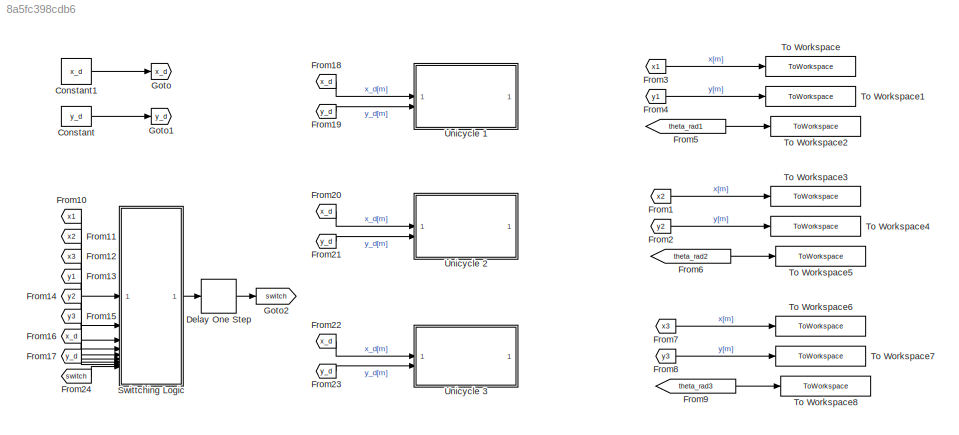
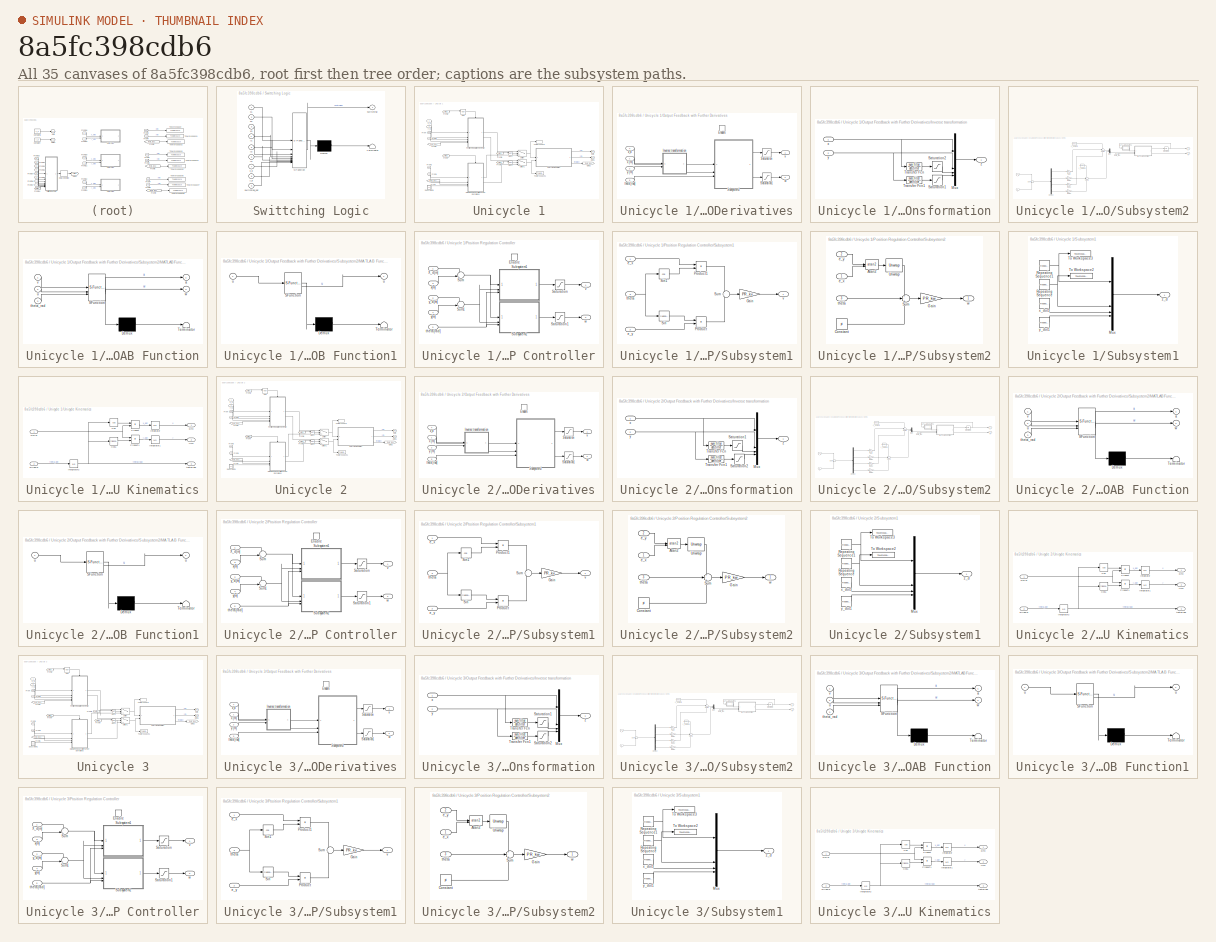
[diagram: thumbnail index - all 35 canvases of the model, root first then tree order]
MODEL slx_8a5fc398cdb6
KIND model
CONFIG AbsTol = auto
CONFIG EnableMultiTasking = off
CONFIG FixedStep = 1e-3
CONFIG MaxStep = 1e-3
CONFIG MinStep = auto
CONFIG RelTol = 1e-3
CONFIG SampleTimeConstraint = Unconstrained
CONFIG SolverName = ode4
CONFIG StartTime = 0.0
CONFIG StopTime = 50
BLOCK [Constant] Constant
  Value = y_d
BLOCK [Constant] Constant1
  Value = x_d
BLOCK [Delay] Delay One Step
  DelayLength = 1
  InputPortMap = u0
BLOCK [From] From1
  GotoTag = x2
  TagVisibility = global
BLOCK [From] From10
  GotoTag = x1
  TagVisibility = global
BLOCK [From] From11
  GotoTag = x2
  TagVisibility = global
BLOCK [From] From12
  GotoTag = x3
  TagVisibility = global
BLOCK [From] From13
  GotoTag = y1
  TagVisibility = global
BLOCK [From] From14
  GotoTag = y2
  TagVisibility = global
BLOCK [From] From15
  GotoTag = y3
  TagVisibility = global
BLOCK [From] From16
  GotoTag = x_d
  TagVisibility = global
BLOCK [From] From17
  GotoTag = y_d
  TagVisibility = global
BLOCK [From] From18
  GotoTag = x_d
  TagVisibility = global
BLOCK [From] From19
  GotoTag = y_d
  TagVisibility = global
BLOCK [From] From2
  GotoTag = y2
  TagVisibility = global
BLOCK [From] From20
  GotoTag = x_d
  TagVisibility = global
BLOCK [From] From21
  GotoTag = y_d
  TagVisibility = global
BLOCK [From] From22
  GotoTag = x_d
  TagVisibility = global
BLOCK [From] From23
  GotoTag = y_d
  TagVisibility = global
BLOCK [From] From24
  GotoTag = switch
  TagVisibility = global
BLOCK [From] From3
  GotoTag = x1
  TagVisibility = global
BLOCK [From] From4
  GotoTag = y1
  TagVisibility = global
BLOCK [From] From5
  GotoTag = theta_rad1
  TagVisibility = global
BLOCK [From] From6
  GotoTag = theta_rad2
  TagVisibility = global
BLOCK [From] From7
  GotoTag = x3
  TagVisibility = global
BLOCK [From] From8
  GotoTag = y3
  TagVisibility = global
BLOCK [From] From9
  GotoTag = theta_rad3
  TagVisibility = global
BLOCK [Goto] Goto
  GotoTag = x_d
  TagVisibility = global
BLOCK [Goto] Goto1
  GotoTag = y_d
  TagVisibility = global
BLOCK [Goto] Goto2
  GotoTag = switch
  TagVisibility = global
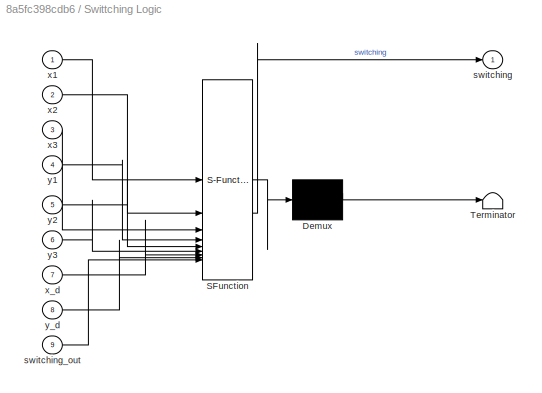
BLOCK [SubSystem] Swittching Logic
  ErrorFcn = Stateflow.Translate.translate
  LibrarySourceBlock = simulink/User-Defined\nFunctions/MATLAB Function
  PermitHierarchicalResolution = ExplicitOnly
  SFBlockType = MATLAB Function
  TreatAsAtomicUnit = on
BLOCK [Demux] Swittching Logic/ Demux 
  Outputs = 1
BLOCK [S-Function] Swittching Logic/ SFunction 
  EnableBusSupport = on
  FunctionName = sf_sfun
  Parameters = tolerance_position
  PortCounts = [9 2]
  SFcnIsStateOwnerBlock = off
  SFunctionDeploymentMode = off
  Tag = Stateflow S-Function 4
BLOCK [Terminator] Swittching Logic/ Terminator 
BLOCK [Outport] Swittching Logic/switching
BLOCK [Inport] Swittching Logic/switching_out
  Port = 9
BLOCK [Inport] Swittching Logic/x1
BLOCK [Inport] Swittching Logic/x2
  Port = 2
BLOCK [Inport] Swittching Logic/x3
  Port = 3
BLOCK [Inport] Swittching Logic/x_d
  Port = 7
BLOCK [Inport] Swittching Logic/y1
  Port = 4
BLOCK [Inport] Swittching Logic/y2
  Port = 5
BLOCK [Inport] Swittching Logic/y3
  Port = 6
BLOCK [Inport] Swittching Logic/y_d
  Port = 8
BLOCK [ToWorkspace] To Workspace
  FixptAsFi = on
  MaxDataPoints = inf
  SampleTime = -1
  SaveFormat = Structure With Time
  VariableName = x1
BLOCK [ToWorkspace] To Workspace1
  FixptAsFi = on
  MaxDataPoints = inf
  SampleTime = -1
  SaveFormat = Structure With Time
  VariableName = y1
BLOCK [ToWorkspace] To Workspace2
  FixptAsFi = on
  MaxDataPoints = inf
  SampleTime = -1
  SaveFormat = Structure With Time
  VariableName = theta_rad1
BLOCK [ToWorkspace] To Workspace3
  FixptAsFi = on
  MaxDataPoints = inf
  SampleTime = -1
  SaveFormat = Structure With Time
  VariableName = x2
BLOCK [ToWorkspace] To Workspace4
  FixptAsFi = on
  MaxDataPoints = inf
  SampleTime = -1
  SaveFormat = Structure With Time
  VariableName = y2
BLOCK [ToWorkspace] To Workspace5
  FixptAsFi = on
  MaxDataPoints = inf
  SampleTime = -1
  SaveFormat = Structure With Time
  VariableName = theta_rad2
BLOCK [ToWorkspace] To Workspace6
  FixptAsFi = on
  MaxDataPoints = inf
  SampleTime = -1
  SaveFormat = Structure With Time
  VariableName = x3
BLOCK [ToWorkspace] To Workspace7
  FixptAsFi = on
  MaxDataPoints = inf
  SampleTime = -1
  SaveFormat = Structure With Time
  VariableName = y3
BLOCK [ToWorkspace] To Workspace8
  FixptAsFi = on
  MaxDataPoints = inf
  SampleTime = -1
  SaveFormat = Structure With Time
  VariableName = theta_rad3
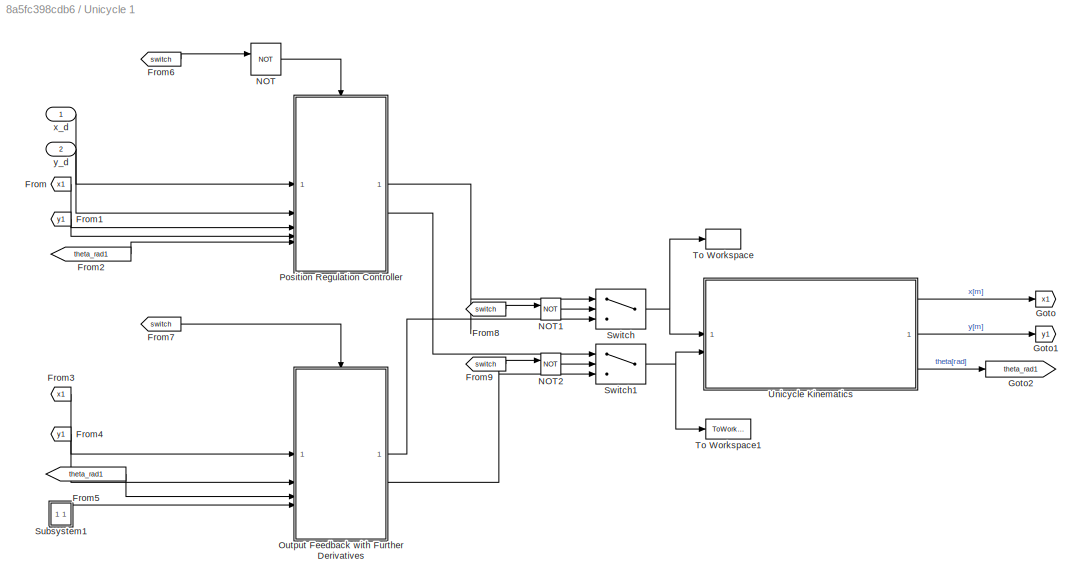
BLOCK [SubSystem] Unicycle 1
BLOCK [From] Unicycle 1/From
  GotoTag = x1
  TagVisibility = global
BLOCK [From] Unicycle 1/From1
  GotoTag = y1
  TagVisibility = global
BLOCK [From] Unicycle 1/From2
  GotoTag = theta_rad1
  TagVisibility = global
BLOCK [From] Unicycle 1/From3
  GotoTag = x1
  TagVisibility = global
BLOCK [From] Unicycle 1/From4
  GotoTag = y1
  TagVisibility = global
BLOCK [From] Unicycle 1/From5
  GotoTag = theta_rad1
  TagVisibility = global
BLOCK [From] Unicycle 1/From6
  GotoTag = switch
  TagVisibility = global
BLOCK [From] Unicycle 1/From7
  GotoTag = switch
  TagVisibility = global
BLOCK [From] Unicycle 1/From8
  GotoTag = switch
  TagVisibility = global
BLOCK [From] Unicycle 1/From9
  GotoTag = switch
  TagVisibility = global
BLOCK [Goto] Unicycle 1/Goto
  GotoTag = x1
  TagVisibility = global
BLOCK [Goto] Unicycle 1/Goto1
  GotoTag = y1
  TagVisibility = global
BLOCK [Goto] Unicycle 1/Goto2
  GotoTag = theta_rad1
  TagVisibility = global
BLOCK [Logic] Unicycle 1/NOT
  AllPortsSameDT = off
  IconShape = distinctive
  Operator = NOT
  OutDataTypeStr = boolean
BLOCK [Logic] Unicycle 1/NOT1
  AllPortsSameDT = off
  IconShape = distinctive
  Operator = NOT
  OutDataTypeStr = boolean
BLOCK [Logic] Unicycle 1/NOT2
  AllPortsSameDT = off
  IconShape = distinctive
  Operator = NOT
  OutDataTypeStr = boolean
BLOCK [SubSystem] Unicycle 1/Output Feedback with Further Derivatives
BLOCK [EnablePort] Unicycle 1/Output Feedback with Further Derivatives/Enable
BLOCK [SubSystem] Unicycle 1/Output Feedback with Further Derivatives/Inverse transformation
BLOCK [Mux] Unicycle 1/Output Feedback with Further Derivatives/Inverse transformation/Mux
  DisplayOption = bar
BLOCK [Saturate] Unicycle 1/Output Feedback with Further Derivatives/Inverse transformation/Saturation1
  LowerLimit = -der_sat
  UpperLimit = der_sat
BLOCK [Saturate] Unicycle 1/Output Feedback with Further Derivatives/Inverse transformation/Saturation2
  LowerLimit = -der_sat
  UpperLimit = der_sat
BLOCK [TransferFcn] Unicycle 1/Output Feedback with Further Derivatives/Inverse transformation/Transfer Fcn
  Denominator = den_filter
  Numerator = num_filter
BLOCK [TransferFcn] Unicycle 1/Output Feedback with Further Derivatives/Inverse transformation/Transfer Fcn1
  Denominator = den_filter
  Numerator = num_filter
BLOCK [Inport] Unicycle 1/Output Feedback with Further Derivatives/Inverse transformation/x
BLOCK [Inport] Unicycle 1/Output Feedback with Further Derivatives/Inverse transformation/y
  Port = 2
BLOCK [Outport] Unicycle 1/Output Feedback with Further Derivatives/Inverse transformation/z
BLOCK [Saturate] Unicycle 1/Output Feedback with Further Derivatives/Saturation
  LowerLimit = -v_sat
  UpperLimit = v_sat
BLOCK [Saturate] Unicycle 1/Output Feedback with Further Derivatives/Saturation1
  LowerLimit = -w_sat
  UpperLimit = w_sat
BLOCK [SubSystem] Unicycle 1/Output Feedback with Further Derivatives/Subsystem2
BLOCK [Demux] Unicycle 1/Output Feedback with Further Derivatives/Subsystem2/Demux
BLOCK [Gain] Unicycle 1/Output Feedback with Further Derivatives/Subsystem2/Gain
  Gain = OF_k1_FD
BLOCK [Gain] Unicycle 1/Output Feedback with Further Derivatives/Subsystem2/Gain1
  Gain = OF_k2_FD
BLOCK [Gain] Unicycle 1/Output Feedback with Further Derivatives/Subsystem2/Gain2
  Gain = OF_k3_FD
BLOCK [Gain] Unicycle 1/Output Feedback with Further Derivatives/Subsystem2/Gain3
  Gain = OF_k4_FD
BLOCK [Integrator] Unicycle 1/Output Feedback with Further Derivatives/Subsystem2/Integrator3
  InitialCondition = 1e-4
BLOCK [SubSystem] Unicycle 1/Output Feedback with Further Derivatives/Subsystem2/MATLAB Function
  ErrorFcn = Stateflow.Translate.translate
  LibrarySourceBlock = simulink/User-Defined\nFunctions/MATLAB Function
  PermitHierarchicalResolution = ExplicitOnly
  SFBlockType = MATLAB Function
  TreatAsAtomicUnit = on
BLOCK [Demux] Unicycle 1/Output Feedback with Further Derivatives/Subsystem2/MATLAB Function/ Demux 
  Outputs = 1
BLOCK [S-Function] Unicycle 1/Output Feedback with Further Derivatives/Subsystem2/MATLAB Function/ SFunction 
  EnableBusSupport = on
  FunctionName = sf_sfun
  PortCounts = [3 3]
  SFcnIsStateOwnerBlock = off
  SFunctionDeploymentMode = off
  Tag = Stateflow S-Function 2
BLOCK [Terminator] Unicycle 1/Output Feedback with Further Derivatives/Subsystem2/MATLAB Function/ Terminator 
BLOCK [Outport] Unicycle 1/Output Feedback with Further Derivatives/Subsystem2/MATLAB Function/a
BLOCK [Inport] Unicycle 1/Output Feedback with Further Derivatives/Subsystem2/MATLAB Function/theta_rad
  Port = 3
BLOCK [Inport] Unicycle 1/Output Feedback with Further Derivatives/Subsystem2/MATLAB Function/u
  Port = 2
BLOCK [Inport] Unicycle 1/Output Feedback with Further Derivatives/Subsystem2/MATLAB Function/v
BLOCK [Outport] Unicycle 1/Output Feedback with Further Derivatives/Subsystem2/MATLAB Function/w
  Port = 2
BLOCK [SubSystem] Unicycle 1/Output Feedback with Further Derivatives/Subsystem2/MATLAB Function1
  ErrorFcn = Stateflow.Translate.translate
  LibrarySourceBlock = simulink/User-Defined\nFunctions/MATLAB Function
  PermitHierarchicalResolution = ExplicitOnly
  SFBlockType = MATLAB Function
  TreatAsAtomicUnit = on
BLOCK [Demux] Unicycle 1/Output Feedback with Further Derivatives/Subsystem2/MATLAB Function1/ Demux 
  Outputs = 1
BLOCK [S-Function] Unicycle 1/Output Feedback with Further Derivatives/Subsystem2/MATLAB Function1/ SFunction 
  EnableBusSupport = on
  FunctionName = sf_sfun
  PortCounts = [1 2]
  SFcnIsStateOwnerBlock = off
  SFunctionDeploymentMode = off
  Tag = Stateflow S-Function 7
BLOCK [Terminator] Unicycle 1/Output Feedback with Further Derivatives/Subsystem2/MATLAB Function1/ Terminator 
BLOCK [Outport] Unicycle 1/Output Feedback with Further Derivatives/Subsystem2/MATLAB Function1/u
BLOCK [Inport] Unicycle 1/Output Feedback with Further Derivatives/Subsystem2/MATLAB Function1/u 
BLOCK [Mux] Unicycle 1/Output Feedback with Further Derivatives/Subsystem2/Mux
  DisplayOption = bar
  Inputs = 2
BLOCK [Sum] Unicycle 1/Output Feedback with Further Derivatives/Subsystem2/Sum
  Inputs = +-
BLOCK [Sum] Unicycle 1/Output Feedback with Further Derivatives/Subsystem2/Sum1
  Inputs = +++
BLOCK [Sum] Unicycle 1/Output Feedback with Further Derivatives/Subsystem2/Sum2
  Inputs = +++
BLOCK [Inport] Unicycle 1/Output Feedback with Further Derivatives/Subsystem2/theta_rad
  Port = 3
BLOCK [Outport] Unicycle 1/Output Feedback with Further Derivatives/Subsystem2/v
BLOCK [Outport] Unicycle 1/Output Feedback with Further Derivatives/Subsystem2/w
  Port = 2
BLOCK [Reference] Unicycle 1/Output Feedback with Further Derivatives/Subsystem2/x_dotdot1  REF=simulink/Sources/Repeating
Sequence
  SourceBlock = simulink/Sources/Repeating\nSequence
  SourceType = Repeating table
BLOCK [Reference] Unicycle 1/Output Feedback with Further Derivatives/Subsystem2/y_dotdot1  REF=simulink/Sources/Repeating
Sequence
  SourceBlock = simulink/Sources/Repeating\nSequence
  SourceType = Repeating table
BLOCK [Inport] Unicycle 1/Output Feedback with Further Derivatives/Subsystem2/z
  Port = 2
BLOCK [Inport] Unicycle 1/Output Feedback with Further Derivatives/Subsystem2/z_d
BLOCK [Inport] Unicycle 1/Output Feedback with Further Derivatives/theta [rad]
  Port = 3
BLOCK [Outport] Unicycle 1/Output Feedback with Further Derivatives/v
BLOCK [Outport] Unicycle 1/Output Feedback with Further Derivatives/w
  Port = 2
BLOCK [Inport] Unicycle 1/Output Feedback with Further Derivatives/x [m]
BLOCK [Inport] Unicycle 1/Output Feedback with Further Derivatives/y [m]
  Port = 2
BLOCK [Inport] Unicycle 1/Output Feedback with Further Derivatives/z_d
  Port = 4
BLOCK [SubSystem] Unicycle 1/Position Regulation Controller
BLOCK [EnablePort] Unicycle 1/Position Regulation Controller/Enable
BLOCK [Saturate] Unicycle 1/Position Regulation Controller/Saturation
  LowerLimit = -v_sat
  UpperLimit = v_sat
BLOCK [Saturate] Unicycle 1/Position Regulation Controller/Saturation1
  LowerLimit = -w_sat
  UpperLimit = w_sat
BLOCK [SubSystem] Unicycle 1/Position Regulation Controller/Subsystem1
BLOCK [Gain] Unicycle 1/Position Regulation Controller/Subsystem1/Gain
  Gain = PR_kv
BLOCK [Product] Unicycle 1/Position Regulation Controller/Subsystem1/Product
BLOCK [Product] Unicycle 1/Position Regulation Controller/Subsystem1/Product1
BLOCK [Trigonometry] Unicycle 1/Position Regulation Controller/Subsystem1/Sin
BLOCK [Trigonometry] Unicycle 1/Position Regulation Controller/Subsystem1/Sin1
  Operator = cos
BLOCK [Sum] Unicycle 1/Position Regulation Controller/Subsystem1/Sum
  Inputs = --
BLOCK [Inport] Unicycle 1/Position Regulation Controller/Subsystem1/e_x
BLOCK [Inport] Unicycle 1/Position Regulation Controller/Subsystem1/e_y
  Port = 2
BLOCK [Inport] Unicycle 1/Position Regulation Controller/Subsystem1/theta
  Port = 3
BLOCK [Outport] Unicycle 1/Position Regulation Controller/Subsystem1/v
BLOCK [SubSystem] Unicycle 1/Position Regulation Controller/Subsystem2
BLOCK [Trigonometry] Unicycle 1/Position Regulation Controller/Subsystem2/Atan2
  ApproximationMethod = Lookup
  NumberOfDataPoints = 2
  Operator = atan2
BLOCK [Constant] Unicycle 1/Position Regulation Controller/Subsystem2/Constant
  Value = pi
BLOCK [Gain] Unicycle 1/Position Regulation Controller/Subsystem2/Gain
  Gain = PR_kw
BLOCK [Sum] Unicycle 1/Position Regulation Controller/Subsystem2/Sum
  Inputs = +-+
BLOCK [Reference] Unicycle 1/Position Regulation Controller/Subsystem2/Unwrap  REF=dspsigops/Unwrap
  SourceBlock = dspsigops/Unwrap
  SourceType = Unwrap
  UserDataPersistent = on
BLOCK [Inport] Unicycle 1/Position Regulation Controller/Subsystem2/e_x
BLOCK [Inport] Unicycle 1/Position Regulation Controller/Subsystem2/e_y
  Port = 2
BLOCK [Inport] Unicycle 1/Position Regulation Controller/Subsystem2/theta
  Port = 3
BLOCK [Outport] Unicycle 1/Position Regulation Controller/Subsystem2/w
BLOCK [Sum] Unicycle 1/Position Regulation Controller/Sum
  Inputs = -+
BLOCK [Sum] Unicycle 1/Position Regulation Controller/Sum1
  Inputs = -+
BLOCK [Inport] Unicycle 1/Position Regulation Controller/X_d[m]
BLOCK [Inport] Unicycle 1/Position Regulation Controller/theta[rad]
  Port = 5
BLOCK [Outport] Unicycle 1/Position Regulation Controller/v
BLOCK [Outport] Unicycle 1/Position Regulation Controller/w
  Port = 2
BLOCK [Inport] Unicycle 1/Position Regulation Controller/x[m]
  Port = 3
BLOCK [Inport] Unicycle 1/Position Regulation Controller/y[m]
  Port = 4
BLOCK [Inport] Unicycle 1/Position Regulation Controller/y_d[m]
  Port = 2
BLOCK [SubSystem] Unicycle 1/Subsystem1
BLOCK [Mux] Unicycle 1/Subsystem1/Mux
  DisplayOption = bar
BLOCK [Reference] Unicycle 1/Subsystem1/Repeating Sequence  REF=simulink/Sources/Repeating
Sequence
  SourceBlock = simulink/Sources/Repeating\nSequence
  SourceType = Repeating table
BLOCK [Reference] Unicycle 1/Subsystem1/Repeating Sequence1  REF=simulink/Sources/Repeating
Sequence
  SourceBlock = simulink/Sources/Repeating\nSequence
  SourceType = Repeating table
BLOCK [ToWorkspace] Unicycle 1/Subsystem1/To Workspace2
  FixptAsFi = on
  MaxDataPoints = inf
  SampleTime = -1
  SaveFormat = Structure With Time
  VariableName = y_d1
BLOCK [ToWorkspace] Unicycle 1/Subsystem1/To Workspace3
  FixptAsFi = on
  MaxDataPoints = inf
  SampleTime = -1
  SaveFormat = Structure With Time
  VariableName = x_d1
BLOCK [Reference] Unicycle 1/Subsystem1/x_dot1  REF=simulink/Sources/Repeating
Sequence
  SourceBlock = simulink/Sources/Repeating\nSequence
  SourceType = Repeating table
BLOCK [Reference] Unicycle 1/Subsystem1/y_dot1  REF=simulink/Sources/Repeating
Sequence
  SourceBlock = simulink/Sources/Repeating\nSequence
  SourceType = Repeating table
BLOCK [Outport] Unicycle 1/Subsystem1/z_d
BLOCK [Switch] Unicycle 1/Switch
  Criteria = u2 > Threshold
  InputSameDT = off
  SaturateOnIntegerOverflow = off
  Threshold = 0.5
BLOCK [Switch] Unicycle 1/Switch1
  Criteria = u2 > Threshold
  InputSameDT = off
  SaturateOnIntegerOverflow = off
  Threshold = 0.5
BLOCK [ToWorkspace] Unicycle 1/To Workspace
  FixptAsFi = on
  MaxDataPoints = inf
  SampleTime = -1
  SaveFormat = Structure With Time
  VariableName = v1
BLOCK [ToWorkspace] Unicycle 1/To Workspace1
  FixptAsFi = on
  MaxDataPoints = inf
  SampleTime = -1
  SaveFormat = Structure With Time
  VariableName = w1
BLOCK [SubSystem] Unicycle 1/Unicycle Kinematics
BLOCK [Trigonometry] Unicycle 1/Unicycle Kinematics/Cos
  Operator = cos
BLOCK [Trigonometry] Unicycle 1/Unicycle Kinematics/Cos1
BLOCK [Integrator] Unicycle 1/Unicycle Kinematics/Integrator
  InitialCondition = p1(1)
BLOCK [Integrator] Unicycle 1/Unicycle Kinematics/Integrator1
  InitialCondition = p1(2)
BLOCK [Integrator] Unicycle 1/Unicycle Kinematics/Integrator2
  InitialCondition = p1(3)
BLOCK [Product] Unicycle 1/Unicycle Kinematics/Product
BLOCK [Product] Unicycle 1/Unicycle Kinematics/Product1
BLOCK [Outport] Unicycle 1/Unicycle Kinematics/theta[rad]
  Port = 3
BLOCK [Inport] Unicycle 1/Unicycle Kinematics/v[m//s]
BLOCK [Inport] Unicycle 1/Unicycle Kinematics/w[rad//s]
  Port = 2
BLOCK [Outport] Unicycle 1/Unicycle Kinematics/x[m]
BLOCK [Outport] Unicycle 1/Unicycle Kinematics/y[m]
  Port = 2
BLOCK [Inport] Unicycle 1/x_d
BLOCK [Inport] Unicycle 1/y_d
  Port = 2
BLOCK [SubSystem] Unicycle 2
BLOCK [From] Unicycle 2/From
  GotoTag = x2
  TagVisibility = global
BLOCK [From] Unicycle 2/From1
  GotoTag = y2
  TagVisibility = global
BLOCK [From] Unicycle 2/From2
  GotoTag = theta_rad2
  TagVisibility = global
BLOCK [From] Unicycle 2/From3
  GotoTag = x2
  TagVisibility = global
BLOCK [From] Unicycle 2/From4
  GotoTag = y2
  TagVisibility = global
BLOCK [From] Unicycle 2/From5
  GotoTag = theta_rad2
  TagVisibility = global
BLOCK [From] Unicycle 2/From6
  GotoTag = switch
  TagVisibility = global
BLOCK [From] Unicycle 2/From7
  GotoTag = switch
  TagVisibility = global
BLOCK [From] Unicycle 2/From8
  GotoTag = switch
  TagVisibility = global
BLOCK [From] Unicycle 2/From9
  GotoTag = switch
  TagVisibility = global
BLOCK [Goto] Unicycle 2/Goto
  GotoTag = x2
  TagVisibility = global
BLOCK [Goto] Unicycle 2/Goto1
  GotoTag = y2
  TagVisibility = global
BLOCK [Goto] Unicycle 2/Goto2
  GotoTag = theta_rad2
  TagVisibility = global
BLOCK [Logic] Unicycle 2/NOT
  AllPortsSameDT = off
  IconShape = distinctive
  Operator = NOT
  OutDataTypeStr = boolean
BLOCK [Logic] Unicycle 2/NOT1
  AllPortsSameDT = off
  IconShape = distinctive
  Operator = NOT
  OutDataTypeStr = boolean
BLOCK [Logic] Unicycle 2/NOT2
  AllPortsSameDT = off
  IconShape = distinctive
  Operator = NOT
  OutDataTypeStr = boolean
BLOCK [SubSystem] Unicycle 2/Output Feedback with Further Derivatives
BLOCK [EnablePort] Unicycle 2/Output Feedback with Further Derivatives/Enable
BLOCK [SubSystem] Unicycle 2/Output Feedback with Further Derivatives/Inverse transformation
BLOCK [Mux] Unicycle 2/Output Feedback with Further Derivatives/Inverse transformation/Mux
  DisplayOption = bar
BLOCK [Saturate] Unicycle 2/Output Feedback with Further Derivatives/Inverse transformation/Saturation1
  LowerLimit = -der_sat
  UpperLimit = der_sat
BLOCK [Saturate] Unicycle 2/Output Feedback with Further Derivatives/Inverse transformation/Saturation2
  LowerLimit = -der_sat
  UpperLimit = der_sat
BLOCK [TransferFcn] Unicycle 2/Output Feedback with Further Derivatives/Inverse transformation/Transfer Fcn
  Denominator = den_filter
  Numerator = num_filter
BLOCK [TransferFcn] Unicycle 2/Output Feedback with Further Derivatives/Inverse transformation/Transfer Fcn1
  Denominator = den_filter
  Numerator = num_filter
BLOCK [Inport] Unicycle 2/Output Feedback with Further Derivatives/Inverse transformation/x
BLOCK [Inport] Unicycle 2/Output Feedback with Further Derivatives/Inverse transformation/y
  Port = 2
BLOCK [Outport] Unicycle 2/Output Feedback with Further Derivatives/Inverse transformation/z
BLOCK [Saturate] Unicycle 2/Output Feedback with Further Derivatives/Saturation
  LowerLimit = -v_sat
  UpperLimit = v_sat
BLOCK [Saturate] Unicycle 2/Output Feedback with Further Derivatives/Saturation1
  LowerLimit = -w_sat
  UpperLimit = w_sat
BLOCK [SubSystem] Unicycle 2/Output Feedback with Further Derivatives/Subsystem2
BLOCK [Demux] Unicycle 2/Output Feedback with Further Derivatives/Subsystem2/Demux
BLOCK [Gain] Unicycle 2/Output Feedback with Further Derivatives/Subsystem2/Gain
  Gain = OF_k1_FD
BLOCK [Gain] Unicycle 2/Output Feedback with Further Derivatives/Subsystem2/Gain1
  Gain = OF_k2_FD
BLOCK [Gain] Unicycle 2/Output Feedback with Further Derivatives/Subsystem2/Gain2
  Gain = OF_k3_FD
BLOCK [Gain] Unicycle 2/Output Feedback with Further Derivatives/Subsystem2/Gain3
  Gain = OF_k4_FD
BLOCK [Integrator] Unicycle 2/Output Feedback with Further Derivatives/Subsystem2/Integrator3
  InitialCondition = 1e-4
BLOCK [SubSystem] Unicycle 2/Output Feedback with Further Derivatives/Subsystem2/MATLAB Function
  ErrorFcn = Stateflow.Translate.translate
  LibrarySourceBlock = simulink/User-Defined\nFunctions/MATLAB Function
  PermitHierarchicalResolution = ExplicitOnly
  SFBlockType = MATLAB Function
  TreatAsAtomicUnit = on
BLOCK [Demux] Unicycle 2/Output Feedback with Further Derivatives/Subsystem2/MATLAB Function/ Demux 
  Outputs = 1
BLOCK [S-Function] Unicycle 2/Output Feedback with Further Derivatives/Subsystem2/MATLAB Function/ SFunction 
  EnableBusSupport = on
  FunctionName = sf_sfun
  PortCounts = [3 3]
  SFcnIsStateOwnerBlock = off
  SFunctionDeploymentMode = off
  Tag = Stateflow S-Function 1
BLOCK [Terminator] Unicycle 2/Output Feedback with Further Derivatives/Subsystem2/MATLAB Function/ Terminator 
BLOCK [Outport] Unicycle 2/Output Feedback with Further Derivatives/Subsystem2/MATLAB Function/a
BLOCK [Inport] Unicycle 2/Output Feedback with Further Derivatives/Subsystem2/MATLAB Function/theta_rad
  Port = 3
BLOCK [Inport] Unicycle 2/Output Feedback with Further Derivatives/Subsystem2/MATLAB Function/u
  Port = 2
BLOCK [Inport] Unicycle 2/Output Feedback with Further Derivatives/Subsystem2/MATLAB Function/v
BLOCK [Outport] Unicycle 2/Output Feedback with Further Derivatives/Subsystem2/MATLAB Function/w
  Port = 2
BLOCK [SubSystem] Unicycle 2/Output Feedback with Further Derivatives/Subsystem2/MATLAB Function1
  ErrorFcn = Stateflow.Translate.translate
  LibrarySourceBlock = simulink/User-Defined\nFunctions/MATLAB Function
  PermitHierarchicalResolution = ExplicitOnly
  SFBlockType = MATLAB Function
  TreatAsAtomicUnit = on
BLOCK [Demux] Unicycle 2/Output Feedback with Further Derivatives/Subsystem2/MATLAB Function1/ Demux 
  Outputs = 1
BLOCK [S-Function] Unicycle 2/Output Feedback with Further Derivatives/Subsystem2/MATLAB Function1/ SFunction 
  EnableBusSupport = on
  FunctionName = sf_sfun
  PortCounts = [1 2]
  SFcnIsStateOwnerBlock = off
  SFunctionDeploymentMode = off
  Tag = Stateflow S-Function 3
BLOCK [Terminator] Unicycle 2/Output Feedback with Further Derivatives/Subsystem2/MATLAB Function1/ Terminator 
BLOCK [Outport] Unicycle 2/Output Feedback with Further Derivatives/Subsystem2/MATLAB Function1/u
BLOCK [Inport] Unicycle 2/Output Feedback with Further Derivatives/Subsystem2/MATLAB Function1/u 
BLOCK [Mux] Unicycle 2/Output Feedback with Further Derivatives/Subsystem2/Mux
  DisplayOption = bar
  Inputs = 2
BLOCK [Sum] Unicycle 2/Output Feedback with Further Derivatives/Subsystem2/Sum
  Inputs = +-
BLOCK [Sum] Unicycle 2/Output Feedback with Further Derivatives/Subsystem2/Sum1
  Inputs = +++
BLOCK [Sum] Unicycle 2/Output Feedback with Further Derivatives/Subsystem2/Sum2
  Inputs = +++
BLOCK [Inport] Unicycle 2/Output Feedback with Further Derivatives/Subsystem2/theta_rad
  Port = 3
BLOCK [Outport] Unicycle 2/Output Feedback with Further Derivatives/Subsystem2/v
BLOCK [Outport] Unicycle 2/Output Feedback with Further Derivatives/Subsystem2/w
  Port = 2
BLOCK [Reference] Unicycle 2/Output Feedback with Further Derivatives/Subsystem2/x_dotdot1  REF=simulink/Sources/Repeating
Sequence
  SourceBlock = simulink/Sources/Repeating\nSequence
  SourceType = Repeating table
BLOCK [Reference] Unicycle 2/Output Feedback with Further Derivatives/Subsystem2/y_dotdot1  REF=simulink/Sources/Repeating
Sequence
  SourceBlock = simulink/Sources/Repeating\nSequence
  SourceType = Repeating table
BLOCK [Inport] Unicycle 2/Output Feedback with Further Derivatives/Subsystem2/z
  Port = 2
BLOCK [Inport] Unicycle 2/Output Feedback with Further Derivatives/Subsystem2/z_d
BLOCK [Inport] Unicycle 2/Output Feedback with Further Derivatives/theta [rad]
  Port = 3
BLOCK [Outport] Unicycle 2/Output Feedback with Further Derivatives/v
BLOCK [Outport] Unicycle 2/Output Feedback with Further Derivatives/w
  Port = 2
BLOCK [Inport] Unicycle 2/Output Feedback with Further Derivatives/x [m]
BLOCK [Inport] Unicycle 2/Output Feedback with Further Derivatives/y [m]
  Port = 2
BLOCK [Inport] Unicycle 2/Output Feedback with Further Derivatives/z_d
  Port = 4
BLOCK [SubSystem] Unicycle 2/Position Regulation Controller
BLOCK [EnablePort] Unicycle 2/Position Regulation Controller/Enable
BLOCK [Saturate] Unicycle 2/Position Regulation Controller/Saturation
  LowerLimit = -v_sat
  UpperLimit = v_sat
BLOCK [Saturate] Unicycle 2/Position Regulation Controller/Saturation1
  LowerLimit = -w_sat
  UpperLimit = w_sat
BLOCK [SubSystem] Unicycle 2/Position Regulation Controller/Subsystem1
BLOCK [Gain] Unicycle 2/Position Regulation Controller/Subsystem1/Gain
  Gain = PR_kv
BLOCK [Product] Unicycle 2/Position Regulation Controller/Subsystem1/Product
BLOCK [Product] Unicycle 2/Position Regulation Controller/Subsystem1/Product1
BLOCK [Trigonometry] Unicycle 2/Position Regulation Controller/Subsystem1/Sin
BLOCK [Trigonometry] Unicycle 2/Position Regulation Controller/Subsystem1/Sin1
  Operator = cos
BLOCK [Sum] Unicycle 2/Position Regulation Controller/Subsystem1/Sum
  Inputs = --
BLOCK [Inport] Unicycle 2/Position Regulation Controller/Subsystem1/e_x
BLOCK [Inport] Unicycle 2/Position Regulation Controller/Subsystem1/e_y
  Port = 2
BLOCK [Inport] Unicycle 2/Position Regulation Controller/Subsystem1/theta
  Port = 3
BLOCK [Outport] Unicycle 2/Position Regulation Controller/Subsystem1/v
BLOCK [SubSystem] Unicycle 2/Position Regulation Controller/Subsystem2
BLOCK [Trigonometry] Unicycle 2/Position Regulation Controller/Subsystem2/Atan2
  ApproximationMethod = Lookup
  NumberOfDataPoints = 2
  Operator = atan2
BLOCK [Constant] Unicycle 2/Position Regulation Controller/Subsystem2/Constant
  Value = pi
BLOCK [Gain] Unicycle 2/Position Regulation Controller/Subsystem2/Gain
  Gain = PR_kw
BLOCK [Sum] Unicycle 2/Position Regulation Controller/Subsystem2/Sum
  Inputs = +-+
BLOCK [Reference] Unicycle 2/Position Regulation Controller/Subsystem2/Unwrap  REF=dspsigops/Unwrap
  SourceBlock = dspsigops/Unwrap
  SourceType = Unwrap
  UserDataPersistent = on
BLOCK [Inport] Unicycle 2/Position Regulation Controller/Subsystem2/e_x
BLOCK [Inport] Unicycle 2/Position Regulation Controller/Subsystem2/e_y
  Port = 2
BLOCK [Inport] Unicycle 2/Position Regulation Controller/Subsystem2/theta
  Port = 3
BLOCK [Outport] Unicycle 2/Position Regulation Controller/Subsystem2/w
BLOCK [Sum] Unicycle 2/Position Regulation Controller/Sum
  Inputs = -+
BLOCK [Sum] Unicycle 2/Position Regulation Controller/Sum1
  Inputs = -+
BLOCK [Inport] Unicycle 2/Position Regulation Controller/X_d[m]
BLOCK [Inport] Unicycle 2/Position Regulation Controller/theta[rad]
  Port = 5
BLOCK [Outport] Unicycle 2/Position Regulation Controller/v
BLOCK [Outport] Unicycle 2/Position Regulation Controller/w
  Port = 2
BLOCK [Inport] Unicycle 2/Position Regulation Controller/x[m]
  Port = 3
BLOCK [Inport] Unicycle 2/Position Regulation Controller/y[m]
  Port = 4
BLOCK [Inport] Unicycle 2/Position Regulation Controller/y_d[m]
  Port = 2
BLOCK [SubSystem] Unicycle 2/Subsystem1
BLOCK [Mux] Unicycle 2/Subsystem1/Mux
  DisplayOption = bar
BLOCK [Reference] Unicycle 2/Subsystem1/Repeating Sequence  REF=simulink/Sources/Repeating
Sequence
  SourceBlock = simulink/Sources/Repeating\nSequence
  SourceType = Repeating table
BLOCK [Reference] Unicycle 2/Subsystem1/Repeating Sequence1  REF=simulink/Sources/Repeating
Sequence
  SourceBlock = simulink/Sources/Repeating\nSequence
  SourceType = Repeating table
BLOCK [ToWorkspace] Unicycle 2/Subsystem1/To Workspace2
  FixptAsFi = on
  MaxDataPoints = inf
  SampleTime = -1
  SaveFormat = Structure With Time
  VariableName = y_d2
BLOCK [ToWorkspace] Unicycle 2/Subsystem1/To Workspace3
  FixptAsFi = on
  MaxDataPoints = inf
  SampleTime = -1
  SaveFormat = Structure With Time
  VariableName = x_d2
BLOCK [Reference] Unicycle 2/Subsystem1/x_dot1  REF=simulink/Sources/Repeating
Sequence
  SourceBlock = simulink/Sources/Repeating\nSequence
  SourceType = Repeating table
BLOCK [Reference] Unicycle 2/Subsystem1/y_dot1  REF=simulink/Sources/Repeating
Sequence
  SourceBlock = simulink/Sources/Repeating\nSequence
  SourceType = Repeating table
BLOCK [Outport] Unicycle 2/Subsystem1/z_d
BLOCK [Switch] Unicycle 2/Switch
  Criteria = u2 > Threshold
  InputSameDT = off
  SaturateOnIntegerOverflow = off
  Threshold = 0.5
BLOCK [Switch] Unicycle 2/Switch1
  Criteria = u2 > Threshold
  InputSameDT = off
  SaturateOnIntegerOverflow = off
  Threshold = 0.5
BLOCK [ToWorkspace] Unicycle 2/To Workspace
  FixptAsFi = on
  MaxDataPoints = inf
  SampleTime = -1
  SaveFormat = Structure With Time
  VariableName = v2
BLOCK [ToWorkspace] Unicycle 2/To Workspace1
  FixptAsFi = on
  MaxDataPoints = inf
  SampleTime = -1
  SaveFormat = Structure With Time
  VariableName = w2
BLOCK [SubSystem] Unicycle 2/Unicycle Kinematics
BLOCK [Trigonometry] Unicycle 2/Unicycle Kinematics/Cos
  Operator = cos
BLOCK [Trigonometry] Unicycle 2/Unicycle Kinematics/Cos1
BLOCK [Integrator] Unicycle 2/Unicycle Kinematics/Integrator
  InitialCondition = p2(1)
BLOCK [Integrator] Unicycle 2/Unicycle Kinematics/Integrator1
  InitialCondition = p2(2)
BLOCK [Integrator] Unicycle 2/Unicycle Kinematics/Integrator2
  InitialCondition = p2(3)
BLOCK [Product] Unicycle 2/Unicycle Kinematics/Product
BLOCK [Product] Unicycle 2/Unicycle Kinematics/Product1
BLOCK [Outport] Unicycle 2/Unicycle Kinematics/theta[rad]
  Port = 3
BLOCK [Inport] Unicycle 2/Unicycle Kinematics/v[m//s]
BLOCK [Inport] Unicycle 2/Unicycle Kinematics/w[rad//s]
  Port = 2
BLOCK [Outport] Unicycle 2/Unicycle Kinematics/x[m]
BLOCK [Outport] Unicycle 2/Unicycle Kinematics/y[m]
  Port = 2
BLOCK [Inport] Unicycle 2/x_d
BLOCK [Inport] Unicycle 2/y_d
  Port = 2
BLOCK [SubSystem] Unicycle 3
BLOCK [From] Unicycle 3/From
  GotoTag = x3
  TagVisibility = global
BLOCK [From] Unicycle 3/From1
  GotoTag = y3
  TagVisibility = global
BLOCK [From] Unicycle 3/From2
  GotoTag = theta_rad3
  TagVisibility = global
BLOCK [From] Unicycle 3/From3
  GotoTag = x3
  TagVisibility = global
BLOCK [From] Unicycle 3/From4
  GotoTag = y3
  TagVisibility = global
BLOCK [From] Unicycle 3/From5
  GotoTag = theta_rad3
  TagVisibility = global
BLOCK [From] Unicycle 3/From6
  GotoTag = switch
  TagVisibility = global
BLOCK [From] Unicycle 3/From7
  GotoTag = switch
  TagVisibility = global
BLOCK [From] Unicycle 3/From8
  GotoTag = switch
  TagVisibility = global
BLOCK [From] Unicycle 3/From9
  GotoTag = switch
  TagVisibility = global
BLOCK [Goto] Unicycle 3/Goto
  GotoTag = x3
  TagVisibility = global
BLOCK [Goto] Unicycle 3/Goto1
  GotoTag = y3
  TagVisibility = global
BLOCK [Goto] Unicycle 3/Goto2
  GotoTag = theta_rad3
  TagVisibility = global
BLOCK [Logic] Unicycle 3/NOT
  AllPortsSameDT = off
  IconShape = distinctive
  Operator = NOT
  OutDataTypeStr = boolean
BLOCK [Logic] Unicycle 3/NOT1
  AllPortsSameDT = off
  IconShape = distinctive
  Operator = NOT
  OutDataTypeStr = boolean
BLOCK [Logic] Unicycle 3/NOT2
  AllPortsSameDT = off
  IconShape = distinctive
  Operator = NOT
  OutDataTypeStr = boolean
BLOCK [SubSystem] Unicycle 3/Output Feedback with Further Derivatives
BLOCK [EnablePort] Unicycle 3/Output Feedback with Further Derivatives/Enable
BLOCK [SubSystem] Unicycle 3/Output Feedback with Further Derivatives/Inverse transformation
BLOCK [Mux] Unicycle 3/Output Feedback with Further Derivatives/Inverse transformation/Mux
  DisplayOption = bar
BLOCK [Saturate] Unicycle 3/Output Feedback with Further Derivatives/Inverse transformation/Saturation1
  LowerLimit = -der_sat
  UpperLimit = der_sat
BLOCK [Saturate] Unicycle 3/Output Feedback with Further Derivatives/Inverse transformation/Saturation2
  LowerLimit = -der_sat
  UpperLimit = der_sat
BLOCK [TransferFcn] Unicycle 3/Output Feedback with Further Derivatives/Inverse transformation/Transfer Fcn
  Denominator = den_filter
  Numerator = num_filter
BLOCK [TransferFcn] Unicycle 3/Output Feedback with Further Derivatives/Inverse transformation/Transfer Fcn1
  Denominator = den_filter
  Numerator = num_filter
BLOCK [Inport] Unicycle 3/Output Feedback with Further Derivatives/Inverse transformation/x
BLOCK [Inport] Unicycle 3/Output Feedback with Further Derivatives/Inverse transformation/y
  Port = 2
BLOCK [Outport] Unicycle 3/Output Feedback with Further Derivatives/Inverse transformation/z
BLOCK [Saturate] Unicycle 3/Output Feedback with Further Derivatives/Saturation
  LowerLimit = -v_sat
  UpperLimit = v_sat
BLOCK [Saturate] Unicycle 3/Output Feedback with Further Derivatives/Saturation1
  LowerLimit = -w_sat
  UpperLimit = w_sat
BLOCK [SubSystem] Unicycle 3/Output Feedback with Further Derivatives/Subsystem2
BLOCK [Demux] Unicycle 3/Output Feedback with Further Derivatives/Subsystem2/Demux
BLOCK [Gain] Unicycle 3/Output Feedback with Further Derivatives/Subsystem2/Gain
  Gain = OF_k1_FD
BLOCK [Gain] Unicycle 3/Output Feedback with Further Derivatives/Subsystem2/Gain1
  Gain = OF_k2_FD
BLOCK [Gain] Unicycle 3/Output Feedback with Further Derivatives/Subsystem2/Gain2
  Gain = OF_k3_FD
BLOCK [Gain] Unicycle 3/Output Feedback with Further Derivatives/Subsystem2/Gain3
  Gain = OF_k4_FD
BLOCK [Integrator] Unicycle 3/Output Feedback with Further Derivatives/Subsystem2/Integrator3
  InitialCondition = 1e-4
BLOCK [SubSystem] Unicycle 3/Output Feedback with Further Derivatives/Subsystem2/MATLAB Function
  ErrorFcn = Stateflow.Translate.translate
  LibrarySourceBlock = simulink/User-Defined\nFunctions/MATLAB Function
  PermitHierarchicalResolution = ExplicitOnly
  SFBlockType = MATLAB Function
  TreatAsAtomicUnit = on
BLOCK [Demux] Unicycle 3/Output Feedback with Further Derivatives/Subsystem2/MATLAB Function/ Demux 
  Outputs = 1
BLOCK [S-Function] Unicycle 3/Output Feedback with Further Derivatives/Subsystem2/MATLAB Function/ SFunction 
  EnableBusSupport = on
  FunctionName = sf_sfun
  PortCounts = [3 3]
  SFcnIsStateOwnerBlock = off
  SFunctionDeploymentMode = off
  Tag = Stateflow S-Function 5
BLOCK [Terminator] Unicycle 3/Output Feedback with Further Derivatives/Subsystem2/MATLAB Function/ Terminator 
BLOCK [Outport] Unicycle 3/Output Feedback with Further Derivatives/Subsystem2/MATLAB Function/a
BLOCK [Inport] Unicycle 3/Output Feedback with Further Derivatives/Subsystem2/MATLAB Function/theta_rad
  Port = 3
BLOCK [Inport] Unicycle 3/Output Feedback with Further Derivatives/Subsystem2/MATLAB Function/u
  Port = 2
BLOCK [Inport] Unicycle 3/Output Feedback with Further Derivatives/Subsystem2/MATLAB Function/v
BLOCK [Outport] Unicycle 3/Output Feedback with Further Derivatives/Subsystem2/MATLAB Function/w
  Port = 2
BLOCK [SubSystem] Unicycle 3/Output Feedback with Further Derivatives/Subsystem2/MATLAB Function1
  ErrorFcn = Stateflow.Translate.translate
  LibrarySourceBlock = simulink/User-Defined\nFunctions/MATLAB Function
  PermitHierarchicalResolution = ExplicitOnly
  SFBlockType = MATLAB Function
  TreatAsAtomicUnit = on
BLOCK [Demux] Unicycle 3/Output Feedback with Further Derivatives/Subsystem2/MATLAB Function1/ Demux 
  Outputs = 1
BLOCK [S-Function] Unicycle 3/Output Feedback with Further Derivatives/Subsystem2/MATLAB Function1/ SFunction 
  EnableBusSupport = on
  FunctionName = sf_sfun
  PortCounts = [1 2]
  SFcnIsStateOwnerBlock = off
  SFunctionDeploymentMode = off
  Tag = Stateflow S-Function 6
BLOCK [Terminator] Unicycle 3/Output Feedback with Further Derivatives/Subsystem2/MATLAB Function1/ Terminator 
BLOCK [Outport] Unicycle 3/Output Feedback with Further Derivatives/Subsystem2/MATLAB Function1/u
BLOCK [Inport] Unicycle 3/Output Feedback with Further Derivatives/Subsystem2/MATLAB Function1/u 
BLOCK [Mux] Unicycle 3/Output Feedback with Further Derivatives/Subsystem2/Mux
  DisplayOption = bar
  Inputs = 2
BLOCK [Sum] Unicycle 3/Output Feedback with Further Derivatives/Subsystem2/Sum
  Inputs = +-
BLOCK [Sum] Unicycle 3/Output Feedback with Further Derivatives/Subsystem2/Sum1
  Inputs = +++
BLOCK [Sum] Unicycle 3/Output Feedback with Further Derivatives/Subsystem2/Sum2
  Inputs = +++
BLOCK [Inport] Unicycle 3/Output Feedback with Further Derivatives/Subsystem2/theta_rad
  Port = 3
BLOCK [Outport] Unicycle 3/Output Feedback with Further Derivatives/Subsystem2/v
BLOCK [Outport] Unicycle 3/Output Feedback with Further Derivatives/Subsystem2/w
  Port = 2
BLOCK [Reference] Unicycle 3/Output Feedback with Further Derivatives/Subsystem2/x_dotdot1  REF=simulink/Sources/Repeating
Sequence
  SourceBlock = simulink/Sources/Repeating\nSequence
  SourceType = Repeating table
BLOCK [Reference] Unicycle 3/Output Feedback with Further Derivatives/Subsystem2/y_dotdot1  REF=simulink/Sources/Repeating
Sequence
  SourceBlock = simulink/Sources/Repeating\nSequence
  SourceType = Repeating table
BLOCK [Inport] Unicycle 3/Output Feedback with Further Derivatives/Subsystem2/z
  Port = 2
BLOCK [Inport] Unicycle 3/Output Feedback with Further Derivatives/Subsystem2/z_d
BLOCK [Inport] Unicycle 3/Output Feedback with Further Derivatives/theta [rad]
  Port = 3
BLOCK [Outport] Unicycle 3/Output Feedback with Further Derivatives/v
BLOCK [Outport] Unicycle 3/Output Feedback with Further Derivatives/w
  Port = 2
BLOCK [Inport] Unicycle 3/Output Feedback with Further Derivatives/x [m]
BLOCK [Inport] Unicycle 3/Output Feedback with Further Derivatives/y [m]
  Port = 2
BLOCK [Inport] Unicycle 3/Output Feedback with Further Derivatives/z_d
  Port = 4
BLOCK [SubSystem] Unicycle 3/Position Regulation Controller
BLOCK [EnablePort] Unicycle 3/Position Regulation Controller/Enable
BLOCK [Saturate] Unicycle 3/Position Regulation Controller/Saturation
  LowerLimit = -v_sat
  UpperLimit = v_sat
BLOCK [Saturate] Unicycle 3/Position Regulation Controller/Saturation1
  LowerLimit = -w_sat
  UpperLimit = w_sat
BLOCK [SubSystem] Unicycle 3/Position Regulation Controller/Subsystem1
BLOCK [Gain] Unicycle 3/Position Regulation Controller/Subsystem1/Gain
  Gain = PR_kv
BLOCK [Product] Unicycle 3/Position Regulation Controller/Subsystem1/Product
BLOCK [Product] Unicycle 3/Position Regulation Controller/Subsystem1/Product1
BLOCK [Trigonometry] Unicycle 3/Position Regulation Controller/Subsystem1/Sin
BLOCK [Trigonometry] Unicycle 3/Position Regulation Controller/Subsystem1/Sin1
  Operator = cos
BLOCK [Sum] Unicycle 3/Position Regulation Controller/Subsystem1/Sum
  Inputs = --
BLOCK [Inport] Unicycle 3/Position Regulation Controller/Subsystem1/e_x
BLOCK [Inport] Unicycle 3/Position Regulation Controller/Subsystem1/e_y
  Port = 2
BLOCK [Inport] Unicycle 3/Position Regulation Controller/Subsystem1/theta
  Port = 3
BLOCK [Outport] Unicycle 3/Position Regulation Controller/Subsystem1/v
BLOCK [SubSystem] Unicycle 3/Position Regulation Controller/Subsystem2
BLOCK [Trigonometry] Unicycle 3/Position Regulation Controller/Subsystem2/Atan2
  ApproximationMethod = Lookup
  NumberOfDataPoints = 2
  Operator = atan2
BLOCK [Constant] Unicycle 3/Position Regulation Controller/Subsystem2/Constant
  Value = pi
BLOCK [Gain] Unicycle 3/Position Regulation Controller/Subsystem2/Gain
  Gain = PR_kw
BLOCK [Sum] Unicycle 3/Position Regulation Controller/Subsystem2/Sum
  Inputs = +-+
BLOCK [Reference] Unicycle 3/Position Regulation Controller/Subsystem2/Unwrap  REF=dspsigops/Unwrap
  SourceBlock = dspsigops/Unwrap
  SourceType = Unwrap
  UserDataPersistent = on
BLOCK [Inport] Unicycle 3/Position Regulation Controller/Subsystem2/e_x
BLOCK [Inport] Unicycle 3/Position Regulation Controller/Subsystem2/e_y
  Port = 2
BLOCK [Inport] Unicycle 3/Position Regulation Controller/Subsystem2/theta
  Port = 3
BLOCK [Outport] Unicycle 3/Position Regulation Controller/Subsystem2/w
BLOCK [Sum] Unicycle 3/Position Regulation Controller/Sum
  Inputs = -+
BLOCK [Sum] Unicycle 3/Position Regulation Controller/Sum1
  Inputs = -+
BLOCK [Inport] Unicycle 3/Position Regulation Controller/X_d[m]
BLOCK [Inport] Unicycle 3/Position Regulation Controller/theta[rad]
  Port = 5
BLOCK [Outport] Unicycle 3/Position Regulation Controller/v
BLOCK [Outport] Unicycle 3/Position Regulation Controller/w
  Port = 2
BLOCK [Inport] Unicycle 3/Position Regulation Controller/x[m]
  Port = 3
BLOCK [Inport] Unicycle 3/Position Regulation Controller/y[m]
  Port = 4
BLOCK [Inport] Unicycle 3/Position Regulation Controller/y_d[m]
  Port = 2
BLOCK [SubSystem] Unicycle 3/Subsystem1
BLOCK [Mux] Unicycle 3/Subsystem1/Mux
  DisplayOption = bar
BLOCK [Reference] Unicycle 3/Subsystem1/Repeating Sequence  REF=simulink/Sources/Repeating
Sequence
  SourceBlock = simulink/Sources/Repeating\nSequence
  SourceType = Repeating table
BLOCK [Reference] Unicycle 3/Subsystem1/Repeating Sequence1  REF=simulink/Sources/Repeating
Sequence
  SourceBlock = simulink/Sources/Repeating\nSequence
  SourceType = Repeating table
BLOCK [ToWorkspace] Unicycle 3/Subsystem1/To Workspace2
  FixptAsFi = on
  MaxDataPoints = inf
  SampleTime = -1
  SaveFormat = Structure With Time
  VariableName = y_d3
BLOCK [ToWorkspace] Unicycle 3/Subsystem1/To Workspace3
  FixptAsFi = on
  MaxDataPoints = inf
  SampleTime = -1
  SaveFormat = Structure With Time
  VariableName = x_d3
BLOCK [Reference] Unicycle 3/Subsystem1/x_dot1  REF=simulink/Sources/Repeating
Sequence
  SourceBlock = simulink/Sources/Repeating\nSequence
  SourceType = Repeating table
BLOCK [Reference] Unicycle 3/Subsystem1/y_dot1  REF=simulink/Sources/Repeating
Sequence
  SourceBlock = simulink/Sources/Repeating\nSequence
  SourceType = Repeating table
BLOCK [Outport] Unicycle 3/Subsystem1/z_d
BLOCK [Switch] Unicycle 3/Switch
  Criteria = u2 > Threshold
  InputSameDT = off
  SaturateOnIntegerOverflow = off
  Threshold = 0.5
BLOCK [Switch] Unicycle 3/Switch1
  Criteria = u2 > Threshold
  InputSameDT = off
  SaturateOnIntegerOverflow = off
  Threshold = 0.5
BLOCK [ToWorkspace] Unicycle 3/To Workspace
  FixptAsFi = on
  MaxDataPoints = inf
  SampleTime = -1
  SaveFormat = Structure With Time
  VariableName = v3
BLOCK [ToWorkspace] Unicycle 3/To Workspace1
  FixptAsFi = on
  MaxDataPoints = inf
  SampleTime = -1
  SaveFormat = Structure With Time
  VariableName = w3
BLOCK [SubSystem] Unicycle 3/Unicycle Kinematics
BLOCK [Trigonometry] Unicycle 3/Unicycle Kinematics/Cos
  Operator = cos
BLOCK [Trigonometry] Unicycle 3/Unicycle Kinematics/Cos1
BLOCK [Integrator] Unicycle 3/Unicycle Kinematics/Integrator
  InitialCondition = p3(1)
BLOCK [Integrator] Unicycle 3/Unicycle Kinematics/Integrator1
  InitialCondition = p3(2)
BLOCK [Integrator] Unicycle 3/Unicycle Kinematics/Integrator2
  InitialCondition = p3(3)
BLOCK [Product] Unicycle 3/Unicycle Kinematics/Product
BLOCK [Product] Unicycle 3/Unicycle Kinematics/Product1
BLOCK [Outport] Unicycle 3/Unicycle Kinematics/theta[rad]
  Port = 3
BLOCK [Inport] Unicycle 3/Unicycle Kinematics/v[m//s]
BLOCK [Inport] Unicycle 3/Unicycle Kinematics/w[rad//s]
  Port = 2
BLOCK [Outport] Unicycle 3/Unicycle Kinematics/x[m]
BLOCK [Outport] Unicycle 3/Unicycle Kinematics/y[m]
  Port = 2
BLOCK [Inport] Unicycle 3/x_d
BLOCK [Inport] Unicycle 3/y_d
  Port = 2
LINE Constant1:1 -> Goto:1
LINE Constant:1 -> Goto1:1
LINE Delay One Step:1 -> Goto2:1
LINE From10:1 -> Swittching Logic:1
LINE From11:1 -> Swittching Logic:2
LINE From12:1 -> Swittching Logic:3
LINE From13:1 -> Swittching Logic:4
LINE From14:1 -> Swittching Logic:5
LINE From15:1 -> Swittching Logic:6
LINE From16:1 -> Swittching Logic:7
LINE From17:1 -> Swittching Logic:8
LINE From18:1 -> Unicycle 1:1
LINE From19:1 -> Unicycle 1:2
LINE From1:1 -> To Workspace3:1
LINE From20:1 -> Unicycle 2:1
LINE From21:1 -> Unicycle 2:2
LINE From22:1 -> Unicycle 3:1
LINE From23:1 -> Unicycle 3:2
LINE From24:1 -> Swittching Logic:9
LINE From2:1 -> To Workspace4:1
LINE From3:1 -> To Workspace:1
LINE From4:1 -> To Workspace1:1
LINE From5:1 -> To Workspace2:1
LINE From6:1 -> To Workspace5:1
LINE From7:1 -> To Workspace6:1
LINE From8:1 -> To Workspace7:1
LINE From9:1 -> To Workspace8:1
LINE Swittching Logic:1 -> Delay One Step:1
LINE Unicycle 1/From1:1 -> Unicycle 1/Position Regulation Controller:4
LINE Unicycle 1/From2:1 -> Unicycle 1/Position Regulation Controller:5
LINE Unicycle 1/From3:1 -> Unicycle 1/Output Feedback with Further Derivatives:1
LINE Unicycle 1/From4:1 -> Unicycle 1/Output Feedback with Further Derivatives:2
LINE Unicycle 1/From5:1 -> Unicycle 1/Output Feedback with Further Derivatives:3
LINE Unicycle 1/From6:1 -> Unicycle 1/NOT:1
LINE Unicycle 1/From7:1 -> Unicycle 1/Output Feedback with Further Derivatives:enable
LINE Unicycle 1/From8:1 -> Unicycle 1/NOT1:1
LINE Unicycle 1/From9:1 -> Unicycle 1/NOT2:1
LINE Unicycle 1/From:1 -> Unicycle 1/Position Regulation Controller:3
LINE Unicycle 1/NOT1:1 -> Unicycle 1/Switch:2
LINE Unicycle 1/NOT2:1 -> Unicycle 1/Switch1:2
LINE Unicycle 1/NOT:1 -> Unicycle 1/Position Regulation Controller:enable
LINE Unicycle 1/Output Feedback with Further Derivatives/Inverse transformation/Mux:1 -> Unicycle 1/Output Feedback with Further Derivatives/Inverse transformation/z:1
LINE Unicycle 1/Output Feedback with Further Derivatives/Inverse transformation/Saturation1:1 -> Unicycle 1/Output Feedback with Further Derivatives/Inverse transformation/Mux:4
LINE Unicycle 1/Output Feedback with Further Derivatives/Inverse transformation/Saturation2:1 -> Unicycle 1/Output Feedback with Further Derivatives/Inverse transformation/Mux:3
LINE Unicycle 1/Output Feedback with Further Derivatives/Inverse transformation/Transfer Fcn1:1 -> Unicycle 1/Output Feedback with Further Derivatives/Inverse transformation/Saturation1:1
LINE Unicycle 1/Output Feedback with Further Derivatives/Inverse transformation/Transfer Fcn:1 -> Unicycle 1/Output Feedback with Further Derivatives/Inverse transformation/Saturation2:1
NET Unicycle 1/Output Feedback with Further Derivatives/Inverse transformation/x:1 -> Unicycle 1/Output Feedback with Further Derivatives/Inverse transformation/Mux:1, Unicycle 1/Output Feedback with Further Derivatives/Inverse transformation/Transfer Fcn:1
NET Unicycle 1/Output Feedback with Further Derivatives/Inverse transformation/y:1 -> Unicycle 1/Output Feedback with Further Derivatives/Inverse transformation/Mux:2, Unicycle 1/Output Feedback with Further Derivatives/Inverse transformation/Transfer Fcn1:1
LINE Unicycle 1/Output Feedback with Further Derivatives/Inverse transformation:1 -> Unicycle 1/Output Feedback with Further Derivatives/Subsystem2:2
LINE Unicycle 1/Output Feedback with Further Derivatives/Saturation1:1 -> Unicycle 1/Output Feedback with Further Derivatives/w:1
LINE Unicycle 1/Output Feedback with Further Derivatives/Saturation:1 -> Unicycle 1/Output Feedback with Further Derivatives/v:1
LINE Unicycle 1/Output Feedback with Further Derivatives/Subsystem2/Demux:1 -> Unicycle 1/Output Feedback with Further Derivatives/Subsystem2/Gain:1
LINE Unicycle 1/Output Feedback with Further Derivatives/Subsystem2/Demux:2 -> Unicycle 1/Output Feedback with Further Derivatives/Subsystem2/Gain1:1
LINE Unicycle 1/Output Feedback with Further Derivatives/Subsystem2/Demux:3 -> Unicycle 1/Output Feedback with Further Derivatives/Subsystem2/Gain2:1
LINE Unicycle 1/Output Feedback with Further Derivatives/Subsystem2/Demux:4 -> Unicycle 1/Output Feedback with Further Derivatives/Subsystem2/Gain3:1
LINE Unicycle 1/Output Feedback with Further Derivatives/Subsystem2/Gain1:1 -> Unicycle 1/Output Feedback with Further Derivatives/Subsystem2/Sum2:2
LINE Unicycle 1/Output Feedback with Further Derivatives/Subsystem2/Gain2:1 -> Unicycle 1/Output Feedback with Further Derivatives/Subsystem2/Sum1:3
LINE Unicycle 1/Output Feedback with Further Derivatives/Subsystem2/Gain3:1 -> Unicycle 1/Output Feedback with Further Derivatives/Subsystem2/Sum2:3
LINE Unicycle 1/Output Feedback with Further Derivatives/Subsystem2/Gain:1 -> Unicycle 1/Output Feedback with Further Derivatives/Subsystem2/Sum1:2
NET Unicycle 1/Output Feedback with Further Derivatives/Subsystem2/Integrator3:1 -> Unicycle 1/Output Feedback with Further Derivatives/Subsystem2/MATLAB Function1:1, Unicycle 1/Output Feedback with Further Derivatives/Subsystem2/v:1
LINE Unicycle 1/Output Feedback with Further Derivatives/Subsystem2/MATLAB Function1:1 -> Unicycle 1/Output Feedback with Further Derivatives/Subsystem2/MATLAB Function:1
LINE Unicycle 1/Output Feedback with Further Derivatives/Subsystem2/MATLAB Function:1 -> Unicycle 1/Output Feedback with Further Derivatives/Subsystem2/Integrator3:1
LINE Unicycle 1/Output Feedback with Further Derivatives/Subsystem2/MATLAB Function:2 -> Unicycle 1/Output Feedback with Further Derivatives/Subsystem2/w:1
LINE Unicycle 1/Output Feedback with Further Derivatives/Subsystem2/Mux:1 -> Unicycle 1/Output Feedback with Further Derivatives/Subsystem2/MATLAB Function:2
LINE Unicycle 1/Output Feedback with Further Derivatives/Subsystem2/Sum1:1 -> Unicycle 1/Output Feedback with Further Derivatives/Subsystem2/Mux:1
LINE Unicycle 1/Output Feedback with Further Derivatives/Subsystem2/Sum2:1 -> Unicycle 1/Output Feedback with Further Derivatives/Subsystem2/Mux:2
LINE Unicycle 1/Output Feedback with Further Derivatives/Subsystem2/Sum:1 -> Unicycle 1/Output Feedback with Further Derivatives/Subsystem2/Demux:1
LINE Unicycle 1/Output Feedback with Further Derivatives/Subsystem2/theta_rad:1 -> Unicycle 1/Output Feedback with Further Derivatives/Subsystem2/MATLAB Function:3
LINE Unicycle 1/Output Feedback with Further Derivatives/Subsystem2/x_dotdot1:1 -> Unicycle 1/Output Feedback with Further Derivatives/Subsystem2/Sum1:1
LINE Unicycle 1/Output Feedback with Further Derivatives/Subsystem2/y_dotdot1:1 -> Unicycle 1/Output Feedback with Further Derivatives/Subsystem2/Sum2:1
LINE Unicycle 1/Output Feedback with Further Derivatives/Subsystem2/z:1 -> Unicycle 1/Output Feedback with Further Derivatives/Subsystem2/Sum:2
LINE Unicycle 1/Output Feedback with Further Derivatives/Subsystem2/z_d:1 -> Unicycle 1/Output Feedback with Further Derivatives/Subsystem2/Sum:1
LINE Unicycle 1/Output Feedback with Further Derivatives/Subsystem2:1 -> Unicycle 1/Output Feedback with Further Derivatives/Saturation:1
LINE Unicycle 1/Output Feedback with Further Derivatives/Subsystem2:2 -> Unicycle 1/Output Feedback with Further Derivatives/Saturation1:1
LINE Unicycle 1/Output Feedback with Further Derivatives/theta [rad]:1 -> Unicycle 1/Output Feedback with Further Derivatives/Subsystem2:3
LINE Unicycle 1/Output Feedback with Further Derivatives/x [m]:1 -> Unicycle 1/Output Feedback with Further Derivatives/Inverse transformation:1
LINE Unicycle 1/Output Feedback with Further Derivatives/y [m]:1 -> Unicycle 1/Output Feedback with Further Derivatives/Inverse transformation:2
LINE Unicycle 1/Output Feedback with Further Derivatives/z_d:1 -> Unicycle 1/Output Feedback with Further Derivatives/Subsystem2:1
LINE Unicycle 1/Output Feedback with Further Derivatives:1 -> Unicycle 1/Switch:3
LINE Unicycle 1/Output Feedback with Further Derivatives:2 -> Unicycle 1/Switch1:3
LINE Unicycle 1/Position Regulation Controller/Saturation1:1 -> Unicycle 1/Position Regulation Controller/w:1
LINE Unicycle 1/Position Regulation Controller/Saturation:1 -> Unicycle 1/Position Regulation Controller/v:1
LINE Unicycle 1/Position Regulation Controller/Subsystem1/Gain:1 -> Unicycle 1/Position Regulation Controller/Subsystem1/v:1
LINE Unicycle 1/Position Regulation Controller/Subsystem1/Product1:1 -> Unicycle 1/Position Regulation Controller/Subsystem1/Sum:1
LINE Unicycle 1/Position Regulation Controller/Subsystem1/Product:1 -> Unicycle 1/Position Regulation Controller/Subsystem1/Sum:2
LINE Unicycle 1/Position Regulation Controller/Subsystem1/Sin1:1 -> Unicycle 1/Position Regulation Controller/Subsystem1/Product1:2
LINE Unicycle 1/Position Regulation Controller/Subsystem1/Sin:1 -> Unicycle 1/Position Regulation Controller/Subsystem1/Product:1
LINE Unicycle 1/Position Regulation Controller/Subsystem1/Sum:1 -> Unicycle 1/Position Regulation Controller/Subsystem1/Gain:1
LINE Unicycle 1/Position Regulation Controller/Subsystem1/e_x:1 -> Unicycle 1/Position Regulation Controller/Subsystem1/Product1:1
LINE Unicycle 1/Position Regulation Controller/Subsystem1/e_y:1 -> Unicycle 1/Position Regulation Controller/Subsystem1/Product:2
NET Unicycle 1/Position Regulation Controller/Subsystem1/theta:1 -> Unicycle 1/Position Regulation Controller/Subsystem1/Sin1:1, Unicycle 1/Position Regulation Controller/Subsystem1/Sin:1
LINE Unicycle 1/Position Regulation Controller/Subsystem1:1 -> Unicycle 1/Position Regulation Controller/Saturation:1
LINE Unicycle 1/Position Regulation Controller/Subsystem2/Atan2:1 -> Unicycle 1/Position Regulation Controller/Subsystem2/Unwrap:1
LINE Unicycle 1/Position Regulation Controller/Subsystem2/Constant:1 -> Unicycle 1/Position Regulation Controller/Subsystem2/Sum:3
LINE Unicycle 1/Position Regulation Controller/Subsystem2/Gain:1 -> Unicycle 1/Position Regulation Controller/Subsystem2/w:1
LINE Unicycle 1/Position Regulation Controller/Subsystem2/Sum:1 -> Unicycle 1/Position Regulation Controller/Subsystem2/Gain:1
LINE Unicycle 1/Position Regulation Controller/Subsystem2/Unwrap:1 -> Unicycle 1/Position Regulation Controller/Subsystem2/Sum:1
LINE Unicycle 1/Position Regulation Controller/Subsystem2/e_x:1 -> Unicycle 1/Position Regulation Controller/Subsystem2/Atan2:2
LINE Unicycle 1/Position Regulation Controller/Subsystem2/e_y:1 -> Unicycle 1/Position Regulation Controller/Subsystem2/Atan2:1
LINE Unicycle 1/Position Regulation Controller/Subsystem2/theta:1 -> Unicycle 1/Position Regulation Controller/Subsystem2/Sum:2
LINE Unicycle 1/Position Regulation Controller/Subsystem2:1 -> Unicycle 1/Position Regulation Controller/Saturation1:1
NET Unicycle 1/Position Regulation Controller/Sum1:1 -> Unicycle 1/Position Regulation Controller/Subsystem1:2, Unicycle 1/Position Regulation Controller/Subsystem2:2
NET Unicycle 1/Position Regulation Controller/Sum:1 -> Unicycle 1/Position Regulation Controller/Subsystem1:1, Unicycle 1/Position Regulation Controller/Subsystem2:1
LINE Unicycle 1/Position Regulation Controller/X_d[m]:1 -> Unicycle 1/Position Regulation Controller/Sum:1
NET Unicycle 1/Position Regulation Controller/theta[rad]:1 -> Unicycle 1/Position Regulation Controller/Subsystem1:3, Unicycle 1/Position Regulation Controller/Subsystem2:3
LINE Unicycle 1/Position Regulation Controller/x[m]:1 -> Unicycle 1/Position Regulation Controller/Sum:2
LINE Unicycle 1/Position Regulation Controller/y[m]:1 -> Unicycle 1/Position Regulation Controller/Sum1:2
LINE Unicycle 1/Position Regulation Controller/y_d[m]:1 -> Unicycle 1/Position Regulation Controller/Sum1:1
LINE Unicycle 1/Position Regulation Controller:1 -> Unicycle 1/Switch:1
LINE Unicycle 1/Position Regulation Controller:2 -> Unicycle 1/Switch1:1
LINE Unicycle 1/Subsystem1/Mux:1 -> Unicycle 1/Subsystem1/z_d:1
NET Unicycle 1/Subsystem1/Repeating Sequence1:1 -> Unicycle 1/Subsystem1/Mux:1, Unicycle 1/Subsystem1/To Workspace3:1
NET Unicycle 1/Subsystem1/Repeating Sequence:1 -> Unicycle 1/Subsystem1/Mux:2, Unicycle 1/Subsystem1/To Workspace2:1
LINE Unicycle 1/Subsystem1/x_dot1:1 -> Unicycle 1/Subsystem1/Mux:3
LINE Unicycle 1/Subsystem1/y_dot1:1 -> Unicycle 1/Subsystem1/Mux:4
LINE Unicycle 1/Subsystem1:1 -> Unicycle 1/Output Feedback with Further Derivatives:4
NET Unicycle 1/Switch1:1 -> Unicycle 1/To Workspace1:1, Unicycle 1/Unicycle Kinematics:2
NET Unicycle 1/Switch:1 -> Unicycle 1/To Workspace:1, Unicycle 1/Unicycle Kinematics:1
LINE Unicycle 1/Unicycle Kinematics/Cos1:1 -> Unicycle 1/Unicycle Kinematics/Product1:2
LINE Unicycle 1/Unicycle Kinematics/Cos:1 -> Unicycle 1/Unicycle Kinematics/Product:1
LINE Unicycle 1/Unicycle Kinematics/Integrator1:1 -> Unicycle 1/Unicycle Kinematics/y[m]:1
NET Unicycle 1/Unicycle Kinematics/Integrator2:1 -> Unicycle 1/Unicycle Kinematics/Cos1:1, Unicycle 1/Unicycle Kinematics/Cos:1, Unicycle 1/Unicycle Kinematics/theta[rad]:1
LINE Unicycle 1/Unicycle Kinematics/Integrator:1 -> Unicycle 1/Unicycle Kinematics/x[m]:1
LINE Unicycle 1/Unicycle Kinematics/Product1:1 -> Unicycle 1/Unicycle Kinematics/Integrator1:1
LINE Unicycle 1/Unicycle Kinematics/Product:1 -> Unicycle 1/Unicycle Kinematics/Integrator:1
NET Unicycle 1/Unicycle Kinematics/v[m//s]:1 -> Unicycle 1/Unicycle Kinematics/Product1:1, Unicycle 1/Unicycle Kinematics/Product:2
LINE Unicycle 1/Unicycle Kinematics/w[rad//s]:1 -> Unicycle 1/Unicycle Kinematics/Integrator2:1
LINE Unicycle 1/Unicycle Kinematics:1 -> Unicycle 1/Goto:1
LINE Unicycle 1/Unicycle Kinematics:2 -> Unicycle 1/Goto1:1
LINE Unicycle 1/Unicycle Kinematics:3 -> Unicycle 1/Goto2:1
LINE Unicycle 1/x_d:1 -> Unicycle 1/Position Regulation Controller:1
LINE Unicycle 1/y_d:1 -> Unicycle 1/Position Regulation Controller:2
LINE Unicycle 2/From1:1 -> Unicycle 2/Position Regulation Controller:4
LINE Unicycle 2/From2:1 -> Unicycle 2/Position Regulation Controller:5
LINE Unicycle 2/From3:1 -> Unicycle 2/Output Feedback with Further Derivatives:1
LINE Unicycle 2/From4:1 -> Unicycle 2/Output Feedback with Further Derivatives:2
LINE Unicycle 2/From5:1 -> Unicycle 2/Output Feedback with Further Derivatives:3
LINE Unicycle 2/From6:1 -> Unicycle 2/NOT:1
LINE Unicycle 2/From7:1 -> Unicycle 2/Output Feedback with Further Derivatives:enable
LINE Unicycle 2/From8:1 -> Unicycle 2/NOT1:1
LINE Unicycle 2/From9:1 -> Unicycle 2/NOT2:1
LINE Unicycle 2/From:1 -> Unicycle 2/Position Regulation Controller:3
LINE Unicycle 2/NOT1:1 -> Unicycle 2/Switch:2
LINE Unicycle 2/NOT2:1 -> Unicycle 2/Switch1:2
LINE Unicycle 2/NOT:1 -> Unicycle 2/Position Regulation Controller:enable
LINE Unicycle 2/Output Feedback with Further Derivatives/Inverse transformation/Mux:1 -> Unicycle 2/Output Feedback with Further Derivatives/Inverse transformation/z:1
LINE Unicycle 2/Output Feedback with Further Derivatives/Inverse transformation/Saturation1:1 -> Unicycle 2/Output Feedback with Further Derivatives/Inverse transformation/Mux:3
LINE Unicycle 2/Output Feedback with Further Derivatives/Inverse transformation/Saturation2:1 -> Unicycle 2/Output Feedback with Further Derivatives/Inverse transformation/Mux:4
LINE Unicycle 2/Output Feedback with Further Derivatives/Inverse transformation/Transfer Fcn1:1 -> Unicycle 2/Output Feedback with Further Derivatives/Inverse transformation/Saturation2:1
LINE Unicycle 2/Output Feedback with Further Derivatives/Inverse transformation/Transfer Fcn:1 -> Unicycle 2/Output Feedback with Further Derivatives/Inverse transformation/Saturation1:1
NET Unicycle 2/Output Feedback with Further Derivatives/Inverse transformation/x:1 -> Unicycle 2/Output Feedback with Further Derivatives/Inverse transformation/Mux:1, Unicycle 2/Output Feedback with Further Derivatives/Inverse transformation/Transfer Fcn:1
NET Unicycle 2/Output Feedback with Further Derivatives/Inverse transformation/y:1 -> Unicycle 2/Output Feedback with Further Derivatives/Inverse transformation/Mux:2, Unicycle 2/Output Feedback with Further Derivatives/Inverse transformation/Transfer Fcn1:1
LINE Unicycle 2/Output Feedback with Further Derivatives/Inverse transformation:1 -> Unicycle 2/Output Feedback with Further Derivatives/Subsystem2:2
LINE Unicycle 2/Output Feedback with Further Derivatives/Saturation1:1 -> Unicycle 2/Output Feedback with Further Derivatives/w:1
LINE Unicycle 2/Output Feedback with Further Derivatives/Saturation:1 -> Unicycle 2/Output Feedback with Further Derivatives/v:1
LINE Unicycle 2/Output Feedback with Further Derivatives/Subsystem2/Demux:1 -> Unicycle 2/Output Feedback with Further Derivatives/Subsystem2/Gain:1
LINE Unicycle 2/Output Feedback with Further Derivatives/Subsystem2/Demux:2 -> Unicycle 2/Output Feedback with Further Derivatives/Subsystem2/Gain1:1
LINE Unicycle 2/Output Feedback with Further Derivatives/Subsystem2/Demux:3 -> Unicycle 2/Output Feedback with Further Derivatives/Subsystem2/Gain2:1
LINE Unicycle 2/Output Feedback with Further Derivatives/Subsystem2/Demux:4 -> Unicycle 2/Output Feedback with Further Derivatives/Subsystem2/Gain3:1
LINE Unicycle 2/Output Feedback with Further Derivatives/Subsystem2/Gain1:1 -> Unicycle 2/Output Feedback with Further Derivatives/Subsystem2/Sum2:2
LINE Unicycle 2/Output Feedback with Further Derivatives/Subsystem2/Gain2:1 -> Unicycle 2/Output Feedback with Further Derivatives/Subsystem2/Sum1:3
LINE Unicycle 2/Output Feedback with Further Derivatives/Subsystem2/Gain3:1 -> Unicycle 2/Output Feedback with Further Derivatives/Subsystem2/Sum2:3
LINE Unicycle 2/Output Feedback with Further Derivatives/Subsystem2/Gain:1 -> Unicycle 2/Output Feedback with Further Derivatives/Subsystem2/Sum1:2
NET Unicycle 2/Output Feedback with Further Derivatives/Subsystem2/Integrator3:1 -> Unicycle 2/Output Feedback with Further Derivatives/Subsystem2/MATLAB Function1:1, Unicycle 2/Output Feedback with Further Derivatives/Subsystem2/v:1
LINE Unicycle 2/Output Feedback with Further Derivatives/Subsystem2/MATLAB Function1:1 -> Unicycle 2/Output Feedback with Further Derivatives/Subsystem2/MATLAB Function:1
LINE Unicycle 2/Output Feedback with Further Derivatives/Subsystem2/MATLAB Function:1 -> Unicycle 2/Output Feedback with Further Derivatives/Subsystem2/Integrator3:1
LINE Unicycle 2/Output Feedback with Further Derivatives/Subsystem2/MATLAB Function:2 -> Unicycle 2/Output Feedback with Further Derivatives/Subsystem2/w:1
LINE Unicycle 2/Output Feedback with Further Derivatives/Subsystem2/Mux:1 -> Unicycle 2/Output Feedback with Further Derivatives/Subsystem2/MATLAB Function:2
LINE Unicycle 2/Output Feedback with Further Derivatives/Subsystem2/Sum1:1 -> Unicycle 2/Output Feedback with Further Derivatives/Subsystem2/Mux:1
LINE Unicycle 2/Output Feedback with Further Derivatives/Subsystem2/Sum2:1 -> Unicycle 2/Output Feedback with Further Derivatives/Subsystem2/Mux:2
LINE Unicycle 2/Output Feedback with Further Derivatives/Subsystem2/Sum:1 -> Unicycle 2/Output Feedback with Further Derivatives/Subsystem2/Demux:1
LINE Unicycle 2/Output Feedback with Further Derivatives/Subsystem2/theta_rad:1 -> Unicycle 2/Output Feedback with Further Derivatives/Subsystem2/MATLAB Function:3
LINE Unicycle 2/Output Feedback with Further Derivatives/Subsystem2/x_dotdot1:1 -> Unicycle 2/Output Feedback with Further Derivatives/Subsystem2/Sum1:1
LINE Unicycle 2/Output Feedback with Further Derivatives/Subsystem2/y_dotdot1:1 -> Unicycle 2/Output Feedback with Further Derivatives/Subsystem2/Sum2:1
LINE Unicycle 2/Output Feedback with Further Derivatives/Subsystem2/z:1 -> Unicycle 2/Output Feedback with Further Derivatives/Subsystem2/Sum:2
LINE Unicycle 2/Output Feedback with Further Derivatives/Subsystem2/z_d:1 -> Unicycle 2/Output Feedback with Further Derivatives/Subsystem2/Sum:1
LINE Unicycle 2/Output Feedback with Further Derivatives/Subsystem2:1 -> Unicycle 2/Output Feedback with Further Derivatives/Saturation:1
LINE Unicycle 2/Output Feedback with Further Derivatives/Subsystem2:2 -> Unicycle 2/Output Feedback with Further Derivatives/Saturation1:1
LINE Unicycle 2/Output Feedback with Further Derivatives/theta [rad]:1 -> Unicycle 2/Output Feedback with Further Derivatives/Subsystem2:3
LINE Unicycle 2/Output Feedback with Further Derivatives/x [m]:1 -> Unicycle 2/Output Feedback with Further Derivatives/Inverse transformation:1
LINE Unicycle 2/Output Feedback with Further Derivatives/y [m]:1 -> Unicycle 2/Output Feedback with Further Derivatives/Inverse transformation:2
LINE Unicycle 2/Output Feedback with Further Derivatives/z_d:1 -> Unicycle 2/Output Feedback with Further Derivatives/Subsystem2:1
LINE Unicycle 2/Output Feedback with Further Derivatives:1 -> Unicycle 2/Switch:3
LINE Unicycle 2/Output Feedback with Further Derivatives:2 -> Unicycle 2/Switch1:3
LINE Unicycle 2/Position Regulation Controller/Saturation1:1 -> Unicycle 2/Position Regulation Controller/w:1
LINE Unicycle 2/Position Regulation Controller/Saturation:1 -> Unicycle 2/Position Regulation Controller/v:1
LINE Unicycle 2/Position Regulation Controller/Subsystem1/Gain:1 -> Unicycle 2/Position Regulation Controller/Subsystem1/v:1
LINE Unicycle 2/Position Regulation Controller/Subsystem1/Product1:1 -> Unicycle 2/Position Regulation Controller/Subsystem1/Sum:1
LINE Unicycle 2/Position Regulation Controller/Subsystem1/Product:1 -> Unicycle 2/Position Regulation Controller/Subsystem1/Sum:2
LINE Unicycle 2/Position Regulation Controller/Subsystem1/Sin1:1 -> Unicycle 2/Position Regulation Controller/Subsystem1/Product1:2
LINE Unicycle 2/Position Regulation Controller/Subsystem1/Sin:1 -> Unicycle 2/Position Regulation Controller/Subsystem1/Product:1
LINE Unicycle 2/Position Regulation Controller/Subsystem1/Sum:1 -> Unicycle 2/Position Regulation Controller/Subsystem1/Gain:1
LINE Unicycle 2/Position Regulation Controller/Subsystem1/e_x:1 -> Unicycle 2/Position Regulation Controller/Subsystem1/Product1:1
LINE Unicycle 2/Position Regulation Controller/Subsystem1/e_y:1 -> Unicycle 2/Position Regulation Controller/Subsystem1/Product:2
NET Unicycle 2/Position Regulation Controller/Subsystem1/theta:1 -> Unicycle 2/Position Regulation Controller/Subsystem1/Sin1:1, Unicycle 2/Position Regulation Controller/Subsystem1/Sin:1
LINE Unicycle 2/Position Regulation Controller/Subsystem1:1 -> Unicycle 2/Position Regulation Controller/Saturation:1
LINE Unicycle 2/Position Regulation Controller/Subsystem2/Atan2:1 -> Unicycle 2/Position Regulation Controller/Subsystem2/Unwrap:1
LINE Unicycle 2/Position Regulation Controller/Subsystem2/Constant:1 -> Unicycle 2/Position Regulation Controller/Subsystem2/Sum:3
LINE Unicycle 2/Position Regulation Controller/Subsystem2/Gain:1 -> Unicycle 2/Position Regulation Controller/Subsystem2/w:1
LINE Unicycle 2/Position Regulation Controller/Subsystem2/Sum:1 -> Unicycle 2/Position Regulation Controller/Subsystem2/Gain:1
LINE Unicycle 2/Position Regulation Controller/Subsystem2/Unwrap:1 -> Unicycle 2/Position Regulation Controller/Subsystem2/Sum:1
LINE Unicycle 2/Position Regulation Controller/Subsystem2/e_x:1 -> Unicycle 2/Position Regulation Controller/Subsystem2/Atan2:2
LINE Unicycle 2/Position Regulation Controller/Subsystem2/e_y:1 -> Unicycle 2/Position Regulation Controller/Subsystem2/Atan2:1
LINE Unicycle 2/Position Regulation Controller/Subsystem2/theta:1 -> Unicycle 2/Position Regulation Controller/Subsystem2/Sum:2
LINE Unicycle 2/Position Regulation Controller/Subsystem2:1 -> Unicycle 2/Position Regulation Controller/Saturation1:1
NET Unicycle 2/Position Regulation Controller/Sum1:1 -> Unicycle 2/Position Regulation Controller/Subsystem1:2, Unicycle 2/Position Regulation Controller/Subsystem2:2
NET Unicycle 2/Position Regulation Controller/Sum:1 -> Unicycle 2/Position Regulation Controller/Subsystem1:1, Unicycle 2/Position Regulation Controller/Subsystem2:1
LINE Unicycle 2/Position Regulation Controller/X_d[m]:1 -> Unicycle 2/Position Regulation Controller/Sum:1
NET Unicycle 2/Position Regulation Controller/theta[rad]:1 -> Unicycle 2/Position Regulation Controller/Subsystem1:3, Unicycle 2/Position Regulation Controller/Subsystem2:3
LINE Unicycle 2/Position Regulation Controller/x[m]:1 -> Unicycle 2/Position Regulation Controller/Sum:2
LINE Unicycle 2/Position Regulation Controller/y[m]:1 -> Unicycle 2/Position Regulation Controller/Sum1:2
LINE Unicycle 2/Position Regulation Controller/y_d[m]:1 -> Unicycle 2/Position Regulation Controller/Sum1:1
LINE Unicycle 2/Position Regulation Controller:1 -> Unicycle 2/Switch:1
LINE Unicycle 2/Position Regulation Controller:2 -> Unicycle 2/Switch1:1
LINE Unicycle 2/Subsystem1/Mux:1 -> Unicycle 2/Subsystem1/z_d:1
NET Unicycle 2/Subsystem1/Repeating Sequence1:1 -> Unicycle 2/Subsystem1/Mux:1, Unicycle 2/Subsystem1/To Workspace3:1
NET Unicycle 2/Subsystem1/Repeating Sequence:1 -> Unicycle 2/Subsystem1/Mux:2, Unicycle 2/Subsystem1/To Workspace2:1
LINE Unicycle 2/Subsystem1/x_dot1:1 -> Unicycle 2/Subsystem1/Mux:3
LINE Unicycle 2/Subsystem1/y_dot1:1 -> Unicycle 2/Subsystem1/Mux:4
LINE Unicycle 2/Subsystem1:1 -> Unicycle 2/Output Feedback with Further Derivatives:4
NET Unicycle 2/Switch1:1 -> Unicycle 2/To Workspace1:1, Unicycle 2/Unicycle Kinematics:2
NET Unicycle 2/Switch:1 -> Unicycle 2/To Workspace:1, Unicycle 2/Unicycle Kinematics:1
LINE Unicycle 2/Unicycle Kinematics/Cos1:1 -> Unicycle 2/Unicycle Kinematics/Product1:2
LINE Unicycle 2/Unicycle Kinematics/Cos:1 -> Unicycle 2/Unicycle Kinematics/Product:1
LINE Unicycle 2/Unicycle Kinematics/Integrator1:1 -> Unicycle 2/Unicycle Kinematics/y[m]:1
NET Unicycle 2/Unicycle Kinematics/Integrator2:1 -> Unicycle 2/Unicycle Kinematics/Cos1:1, Unicycle 2/Unicycle Kinematics/Cos:1, Unicycle 2/Unicycle Kinematics/theta[rad]:1
LINE Unicycle 2/Unicycle Kinematics/Integrator:1 -> Unicycle 2/Unicycle Kinematics/x[m]:1
LINE Unicycle 2/Unicycle Kinematics/Product1:1 -> Unicycle 2/Unicycle Kinematics/Integrator1:1
LINE Unicycle 2/Unicycle Kinematics/Product:1 -> Unicycle 2/Unicycle Kinematics/Integrator:1
NET Unicycle 2/Unicycle Kinematics/v[m//s]:1 -> Unicycle 2/Unicycle Kinematics/Product1:1, Unicycle 2/Unicycle Kinematics/Product:2
LINE Unicycle 2/Unicycle Kinematics/w[rad//s]:1 -> Unicycle 2/Unicycle Kinematics/Integrator2:1
LINE Unicycle 2/Unicycle Kinematics:1 -> Unicycle 2/Goto:1
LINE Unicycle 2/Unicycle Kinematics:2 -> Unicycle 2/Goto1:1
LINE Unicycle 2/Unicycle Kinematics:3 -> Unicycle 2/Goto2:1
LINE Unicycle 2/x_d:1 -> Unicycle 2/Position Regulation Controller:1
LINE Unicycle 2/y_d:1 -> Unicycle 2/Position Regulation Controller:2
LINE Unicycle 3/From1:1 -> Unicycle 3/Position Regulation Controller:4
LINE Unicycle 3/From2:1 -> Unicycle 3/Position Regulation Controller:5
LINE Unicycle 3/From3:1 -> Unicycle 3/Output Feedback with Further Derivatives:1
LINE Unicycle 3/From4:1 -> Unicycle 3/Output Feedback with Further Derivatives:2
LINE Unicycle 3/From5:1 -> Unicycle 3/Output Feedback with Further Derivatives:3
LINE Unicycle 3/From6:1 -> Unicycle 3/NOT:1
LINE Unicycle 3/From7:1 -> Unicycle 3/Output Feedback with Further Derivatives:enable
LINE Unicycle 3/From8:1 -> Unicycle 3/NOT1:1
LINE Unicycle 3/From9:1 -> Unicycle 3/NOT2:1
LINE Unicycle 3/From:1 -> Unicycle 3/Position Regulation Controller:3
LINE Unicycle 3/NOT1:1 -> Unicycle 3/Switch:2
LINE Unicycle 3/NOT2:1 -> Unicycle 3/Switch1:2
LINE Unicycle 3/NOT:1 -> Unicycle 3/Position Regulation Controller:enable
LINE Unicycle 3/Output Feedback with Further Derivatives/Inverse transformation/Mux:1 -> Unicycle 3/Output Feedback with Further Derivatives/Inverse transformation/z:1
LINE Unicycle 3/Output Feedback with Further Derivatives/Inverse transformation/Saturation1:1 -> Unicycle 3/Output Feedback with Further Derivatives/Inverse transformation/Mux:3
LINE Unicycle 3/Output Feedback with Further Derivatives/Inverse transformation/Saturation2:1 -> Unicycle 3/Output Feedback with Further Derivatives/Inverse transformation/Mux:4
LINE Unicycle 3/Output Feedback with Further Derivatives/Inverse transformation/Transfer Fcn1:1 -> Unicycle 3/Output Feedback with Further Derivatives/Inverse transformation/Saturation2:1
LINE Unicycle 3/Output Feedback with Further Derivatives/Inverse transformation/Transfer Fcn:1 -> Unicycle 3/Output Feedback with Further Derivatives/Inverse transformation/Saturation1:1
NET Unicycle 3/Output Feedback with Further Derivatives/Inverse transformation/x:1 -> Unicycle 3/Output Feedback with Further Derivatives/Inverse transformation/Mux:1, Unicycle 3/Output Feedback with Further Derivatives/Inverse transformation/Transfer Fcn:1
NET Unicycle 3/Output Feedback with Further Derivatives/Inverse transformation/y:1 -> Unicycle 3/Output Feedback with Further Derivatives/Inverse transformation/Mux:2, Unicycle 3/Output Feedback with Further Derivatives/Inverse transformation/Transfer Fcn1:1
LINE Unicycle 3/Output Feedback with Further Derivatives/Inverse transformation:1 -> Unicycle 3/Output Feedback with Further Derivatives/Subsystem2:2
LINE Unicycle 3/Output Feedback with Further Derivatives/Saturation1:1 -> Unicycle 3/Output Feedback with Further Derivatives/w:1
LINE Unicycle 3/Output Feedback with Further Derivatives/Saturation:1 -> Unicycle 3/Output Feedback with Further Derivatives/v:1
LINE Unicycle 3/Output Feedback with Further Derivatives/Subsystem2/Demux:1 -> Unicycle 3/Output Feedback with Further Derivatives/Subsystem2/Gain:1
LINE Unicycle 3/Output Feedback with Further Derivatives/Subsystem2/Demux:2 -> Unicycle 3/Output Feedback with Further Derivatives/Subsystem2/Gain1:1
LINE Unicycle 3/Output Feedback with Further Derivatives/Subsystem2/Demux:3 -> Unicycle 3/Output Feedback with Further Derivatives/Subsystem2/Gain2:1
LINE Unicycle 3/Output Feedback with Further Derivatives/Subsystem2/Demux:4 -> Unicycle 3/Output Feedback with Further Derivatives/Subsystem2/Gain3:1
LINE Unicycle 3/Output Feedback with Further Derivatives/Subsystem2/Gain1:1 -> Unicycle 3/Output Feedback with Further Derivatives/Subsystem2/Sum2:2
LINE Unicycle 3/Output Feedback with Further Derivatives/Subsystem2/Gain2:1 -> Unicycle 3/Output Feedback with Further Derivatives/Subsystem2/Sum1:3
LINE Unicycle 3/Output Feedback with Further Derivatives/Subsystem2/Gain3:1 -> Unicycle 3/Output Feedback with Further Derivatives/Subsystem2/Sum2:3
LINE Unicycle 3/Output Feedback with Further Derivatives/Subsystem2/Gain:1 -> Unicycle 3/Output Feedback with Further Derivatives/Subsystem2/Sum1:2
NET Unicycle 3/Output Feedback with Further Derivatives/Subsystem2/Integrator3:1 -> Unicycle 3/Output Feedback with Further Derivatives/Subsystem2/MATLAB Function1:1, Unicycle 3/Output Feedback with Further Derivatives/Subsystem2/v:1
LINE Unicycle 3/Output Feedback with Further Derivatives/Subsystem2/MATLAB Function1:1 -> Unicycle 3/Output Feedback with Further Derivatives/Subsystem2/MATLAB Function:1
LINE Unicycle 3/Output Feedback with Further Derivatives/Subsystem2/MATLAB Function:1 -> Unicycle 3/Output Feedback with Further Derivatives/Subsystem2/Integrator3:1
LINE Unicycle 3/Output Feedback with Further Derivatives/Subsystem2/MATLAB Function:2 -> Unicycle 3/Output Feedback with Further Derivatives/Subsystem2/w:1
LINE Unicycle 3/Output Feedback with Further Derivatives/Subsystem2/Mux:1 -> Unicycle 3/Output Feedback with Further Derivatives/Subsystem2/MATLAB Function:2
LINE Unicycle 3/Output Feedback with Further Derivatives/Subsystem2/Sum1:1 -> Unicycle 3/Output Feedback with Further Derivatives/Subsystem2/Mux:1
LINE Unicycle 3/Output Feedback with Further Derivatives/Subsystem2/Sum2:1 -> Unicycle 3/Output Feedback with Further Derivatives/Subsystem2/Mux:2
LINE Unicycle 3/Output Feedback with Further Derivatives/Subsystem2/Sum:1 -> Unicycle 3/Output Feedback with Further Derivatives/Subsystem2/Demux:1
LINE Unicycle 3/Output Feedback with Further Derivatives/Subsystem2/theta_rad:1 -> Unicycle 3/Output Feedback with Further Derivatives/Subsystem2/MATLAB Function:3
LINE Unicycle 3/Output Feedback with Further Derivatives/Subsystem2/x_dotdot1:1 -> Unicycle 3/Output Feedback with Further Derivatives/Subsystem2/Sum1:1
LINE Unicycle 3/Output Feedback with Further Derivatives/Subsystem2/y_dotdot1:1 -> Unicycle 3/Output Feedback with Further Derivatives/Subsystem2/Sum2:1
LINE Unicycle 3/Output Feedback with Further Derivatives/Subsystem2/z:1 -> Unicycle 3/Output Feedback with Further Derivatives/Subsystem2/Sum:2
LINE Unicycle 3/Output Feedback with Further Derivatives/Subsystem2/z_d:1 -> Unicycle 3/Output Feedback with Further Derivatives/Subsystem2/Sum:1
LINE Unicycle 3/Output Feedback with Further Derivatives/Subsystem2:1 -> Unicycle 3/Output Feedback with Further Derivatives/Saturation:1
LINE Unicycle 3/Output Feedback with Further Derivatives/Subsystem2:2 -> Unicycle 3/Output Feedback with Further Derivatives/Saturation1:1
LINE Unicycle 3/Output Feedback with Further Derivatives/theta [rad]:1 -> Unicycle 3/Output Feedback with Further Derivatives/Subsystem2:3
LINE Unicycle 3/Output Feedback with Further Derivatives/x [m]:1 -> Unicycle 3/Output Feedback with Further Derivatives/Inverse transformation:1
LINE Unicycle 3/Output Feedback with Further Derivatives/y [m]:1 -> Unicycle 3/Output Feedback with Further Derivatives/Inverse transformation:2
LINE Unicycle 3/Output Feedback with Further Derivatives/z_d:1 -> Unicycle 3/Output Feedback with Further Derivatives/Subsystem2:1
LINE Unicycle 3/Output Feedback with Further Derivatives:1 -> Unicycle 3/Switch:3
LINE Unicycle 3/Output Feedback with Further Derivatives:2 -> Unicycle 3/Switch1:3
LINE Unicycle 3/Position Regulation Controller/Saturation1:1 -> Unicycle 3/Position Regulation Controller/w:1
LINE Unicycle 3/Position Regulation Controller/Saturation:1 -> Unicycle 3/Position Regulation Controller/v:1
LINE Unicycle 3/Position Regulation Controller/Subsystem1/Gain:1 -> Unicycle 3/Position Regulation Controller/Subsystem1/v:1
LINE Unicycle 3/Position Regulation Controller/Subsystem1/Product1:1 -> Unicycle 3/Position Regulation Controller/Subsystem1/Sum:1
LINE Unicycle 3/Position Regulation Controller/Subsystem1/Product:1 -> Unicycle 3/Position Regulation Controller/Subsystem1/Sum:2
LINE Unicycle 3/Position Regulation Controller/Subsystem1/Sin1:1 -> Unicycle 3/Position Regulation Controller/Subsystem1/Product1:2
LINE Unicycle 3/Position Regulation Controller/Subsystem1/Sin:1 -> Unicycle 3/Position Regulation Controller/Subsystem1/Product:1
LINE Unicycle 3/Position Regulation Controller/Subsystem1/Sum:1 -> Unicycle 3/Position Regulation Controller/Subsystem1/Gain:1
LINE Unicycle 3/Position Regulation Controller/Subsystem1/e_x:1 -> Unicycle 3/Position Regulation Controller/Subsystem1/Product1:1
LINE Unicycle 3/Position Regulation Controller/Subsystem1/e_y:1 -> Unicycle 3/Position Regulation Controller/Subsystem1/Product:2
NET Unicycle 3/Position Regulation Controller/Subsystem1/theta:1 -> Unicycle 3/Position Regulation Controller/Subsystem1/Sin1:1, Unicycle 3/Position Regulation Controller/Subsystem1/Sin:1
LINE Unicycle 3/Position Regulation Controller/Subsystem1:1 -> Unicycle 3/Position Regulation Controller/Saturation:1
LINE Unicycle 3/Position Regulation Controller/Subsystem2/Atan2:1 -> Unicycle 3/Position Regulation Controller/Subsystem2/Unwrap:1
LINE Unicycle 3/Position Regulation Controller/Subsystem2/Constant:1 -> Unicycle 3/Position Regulation Controller/Subsystem2/Sum:3
LINE Unicycle 3/Position Regulation Controller/Subsystem2/Gain:1 -> Unicycle 3/Position Regulation Controller/Subsystem2/w:1
LINE Unicycle 3/Position Regulation Controller/Subsystem2/Sum:1 -> Unicycle 3/Position Regulation Controller/Subsystem2/Gain:1
LINE Unicycle 3/Position Regulation Controller/Subsystem2/Unwrap:1 -> Unicycle 3/Position Regulation Controller/Subsystem2/Sum:1
LINE Unicycle 3/Position Regulation Controller/Subsystem2/e_x:1 -> Unicycle 3/Position Regulation Controller/Subsystem2/Atan2:2
LINE Unicycle 3/Position Regulation Controller/Subsystem2/e_y:1 -> Unicycle 3/Position Regulation Controller/Subsystem2/Atan2:1
LINE Unicycle 3/Position Regulation Controller/Subsystem2/theta:1 -> Unicycle 3/Position Regulation Controller/Subsystem2/Sum:2
LINE Unicycle 3/Position Regulation Controller/Subsystem2:1 -> Unicycle 3/Position Regulation Controller/Saturation1:1
NET Unicycle 3/Position Regulation Controller/Sum1:1 -> Unicycle 3/Position Regulation Controller/Subsystem1:2, Unicycle 3/Position Regulation Controller/Subsystem2:2
NET Unicycle 3/Position Regulation Controller/Sum:1 -> Unicycle 3/Position Regulation Controller/Subsystem1:1, Unicycle 3/Position Regulation Controller/Subsystem2:1
LINE Unicycle 3/Position Regulation Controller/X_d[m]:1 -> Unicycle 3/Position Regulation Controller/Sum:1
NET Unicycle 3/Position Regulation Controller/theta[rad]:1 -> Unicycle 3/Position Regulation Controller/Subsystem1:3, Unicycle 3/Position Regulation Controller/Subsystem2:3
LINE Unicycle 3/Position Regulation Controller/x[m]:1 -> Unicycle 3/Position Regulation Controller/Sum:2
LINE Unicycle 3/Position Regulation Controller/y[m]:1 -> Unicycle 3/Position Regulation Controller/Sum1:2
LINE Unicycle 3/Position Regulation Controller/y_d[m]:1 -> Unicycle 3/Position Regulation Controller/Sum1:1
LINE Unicycle 3/Position Regulation Controller:1 -> Unicycle 3/Switch:1
LINE Unicycle 3/Position Regulation Controller:2 -> Unicycle 3/Switch1:1
LINE Unicycle 3/Subsystem1/Mux:1 -> Unicycle 3/Subsystem1/z_d:1
NET Unicycle 3/Subsystem1/Repeating Sequence1:1 -> Unicycle 3/Subsystem1/Mux:1, Unicycle 3/Subsystem1/To Workspace3:1
NET Unicycle 3/Subsystem1/Repeating Sequence:1 -> Unicycle 3/Subsystem1/Mux:2, Unicycle 3/Subsystem1/To Workspace2:1
LINE Unicycle 3/Subsystem1/x_dot1:1 -> Unicycle 3/Subsystem1/Mux:3
LINE Unicycle 3/Subsystem1/y_dot1:1 -> Unicycle 3/Subsystem1/Mux:4
LINE Unicycle 3/Subsystem1:1 -> Unicycle 3/Output Feedback with Further Derivatives:4
NET Unicycle 3/Switch1:1 -> Unicycle 3/To Workspace1:1, Unicycle 3/Unicycle Kinematics:2
NET Unicycle 3/Switch:1 -> Unicycle 3/To Workspace:1, Unicycle 3/Unicycle Kinematics:1
LINE Unicycle 3/Unicycle Kinematics/Cos1:1 -> Unicycle 3/Unicycle Kinematics/Product1:2
LINE Unicycle 3/Unicycle Kinematics/Cos:1 -> Unicycle 3/Unicycle Kinematics/Product:1
LINE Unicycle 3/Unicycle Kinematics/Integrator1:1 -> Unicycle 3/Unicycle Kinematics/y[m]:1
NET Unicycle 3/Unicycle Kinematics/Integrator2:1 -> Unicycle 3/Unicycle Kinematics/Cos1:1, Unicycle 3/Unicycle Kinematics/Cos:1, Unicycle 3/Unicycle Kinematics/theta[rad]:1
LINE Unicycle 3/Unicycle Kinematics/Integrator:1 -> Unicycle 3/Unicycle Kinematics/x[m]:1
LINE Unicycle 3/Unicycle Kinematics/Product1:1 -> Unicycle 3/Unicycle Kinematics/Integrator1:1
LINE Unicycle 3/Unicycle Kinematics/Product:1 -> Unicycle 3/Unicycle Kinematics/Integrator:1
NET Unicycle 3/Unicycle Kinematics/v[m//s]:1 -> Unicycle 3/Unicycle Kinematics/Product1:1, Unicycle 3/Unicycle Kinematics/Product:2
LINE Unicycle 3/Unicycle Kinematics/w[rad//s]:1 -> Unicycle 3/Unicycle Kinematics/Integrator2:1
LINE Unicycle 3/Unicycle Kinematics:1 -> Unicycle 3/Goto:1
LINE Unicycle 3/Unicycle Kinematics:2 -> Unicycle 3/Goto1:1
LINE Unicycle 3/Unicycle Kinematics:3 -> Unicycle 3/Goto2:1
LINE Unicycle 3/x_d:1 -> Unicycle 3/Position Regulation Controller:1
LINE Unicycle 3/y_d:1 -> Unicycle 3/Position Regulation Controller:2
note: NET lines group one-source signal fan-out (src -> all destinations, sorted); 1:1 wires keep LINE
CHART Unicycle 2/Output Feedback with Further Derivatives/Subsystem2/MATLAB Function states=1 transitions=1
  STATE_LABEL 'eML_blk_kernel()'
  STATE_LABEL 'SCRIPT:\nfunction [a, w] = fcn(v, u, theta_rad)\n\nT_inv=[cos(theta_rad)       sin(theta_rad);\n       -sin(theta_rad)/v    cos(theta_rad)/v];\n\nin=T_inv*u;\n\na = in(1);\nw= in(2);'
CHART Unicycle 1/Output Feedback with Further Derivatives/Subsystem2/MATLAB Function states=1 transitions=1
  STATE_LABEL 'eML_blk_kernel()'
  STATE_LABEL 'SCRIPT:\nfunction [a, w] = fcn(v, u, theta_rad)\n\nT_inv=[cos(theta_rad)       sin(theta_rad);\n       -sin(theta_rad)/v    cos(theta_rad)/v];\n\nin=T_inv*u;\n\na = in(1);\nw= in(2);'
CHART Unicycle 2/Output Feedback with Further Derivatives/Subsystem2/MATLAB Function1 states=1 transitions=1
  STATE_LABEL 'eML_blk_kernel()'
  STATE_LABEL 'SCRIPT:\nfunction u = fcn(u)\n\nif abs(u)<1e-4\n    if u>=0\n        u=1e-4;\n    else\n        u=-1e-4;\n    end\nelse\n    u=u;\nend'
CHART Swittching Logic states=1 transitions=1
  STATE_LABEL 'eML_blk_kernel()'
  STATE_LABEL 'SCRIPT:\nfunction switching = fcn(x1, x2, x3, y1, y2, y3, x_d, y_d, switching_out, tolerance_position)\nif switching_out==1\n    switching=1;\nelse\n    if sqrt((x1-x_d)^2+(y1-y_d)^2)<tolerance_position && sqrt((x2-x_d)^2+(y2-y_d)^2)<tolerance_position && sqrt((x3-x_d)^2+(y3-y_d)^2)<tolerance_position\n        switching = 1; \n    else\n        switching = 0; \n    end\nend\n'
CHART Unicycle 3/Output Feedback with Further Derivatives/Subsystem2/MATLAB Function states=1 transitions=1
  STATE_LABEL 'eML_blk_kernel()'
  STATE_LABEL 'SCRIPT:\nfunction [a, w] = fcn(v, u, theta_rad)\n\nT_inv=[cos(theta_rad)       sin(theta_rad);\n       -sin(theta_rad)/v    cos(theta_rad)/v];\n\nin=T_inv*u;\n\na = in(1);\nw= in(2);'
CHART Unicycle 3/Output Feedback with Further Derivatives/Subsystem2/MATLAB Function1 states=1 transitions=1
  STATE_LABEL 'eML_blk_kernel()'
  STATE_LABEL 'SCRIPT:\nfunction u = fcn(u)\n\nif abs(u)<1e-4\n    if u>=0\n        u=1e-4;\n    else\n        u=-1e-4;\n    end\nelse\n    u=u;\nend'
CHART Unicycle 1/Output Feedback with Further Derivatives/Subsystem2/MATLAB Function1 states=1 transitions=1
  STATE_LABEL 'eML_blk_kernel()'
  STATE_LABEL 'SCRIPT:\nfunction u = fcn(u)\n\nif abs(u)<1e-4\n    if u>=0\n        u=1e-4;\n    else\n        u=-1e-4;\n    end\nelse\n    u=u;\nend'
CHART  states=0 transitions=0
CHART  states=0 transitions=0
CHART  states=0 transitions=0
CHART  states=0 transitions=0
CHART  states=0 transitions=0
CHART  states=0 transitions=0
CHART  states=0 transitions=0
